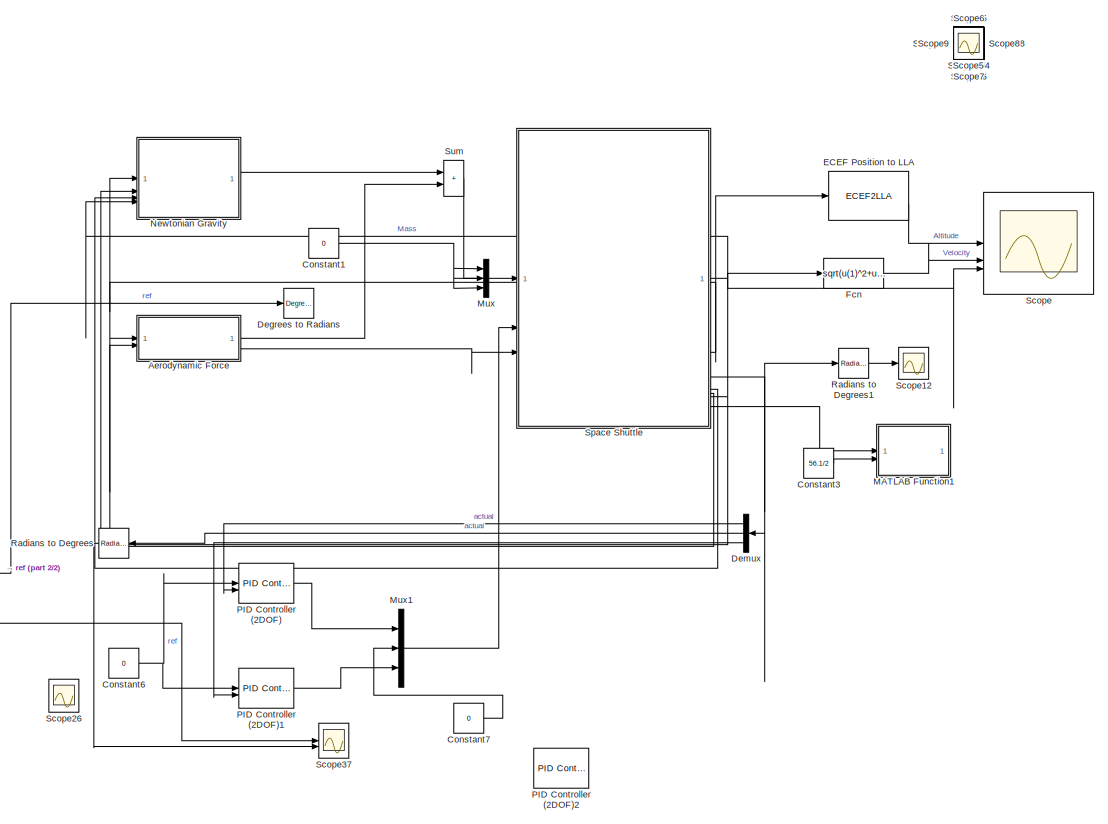
[diagram: root canvas - part 1/2, right side, full height]
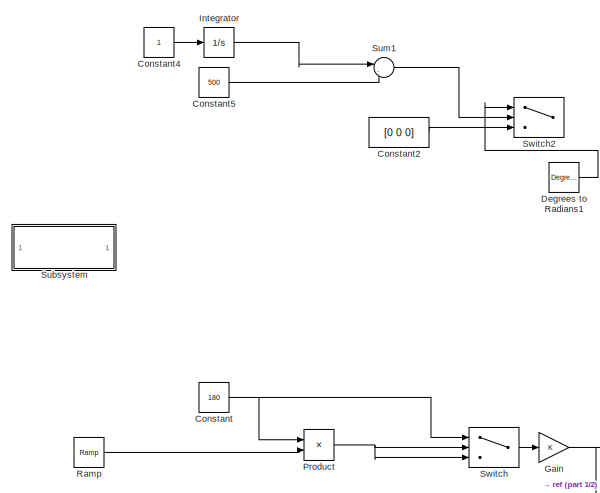
[diagram: root canvas - part 2/2, middle left region]
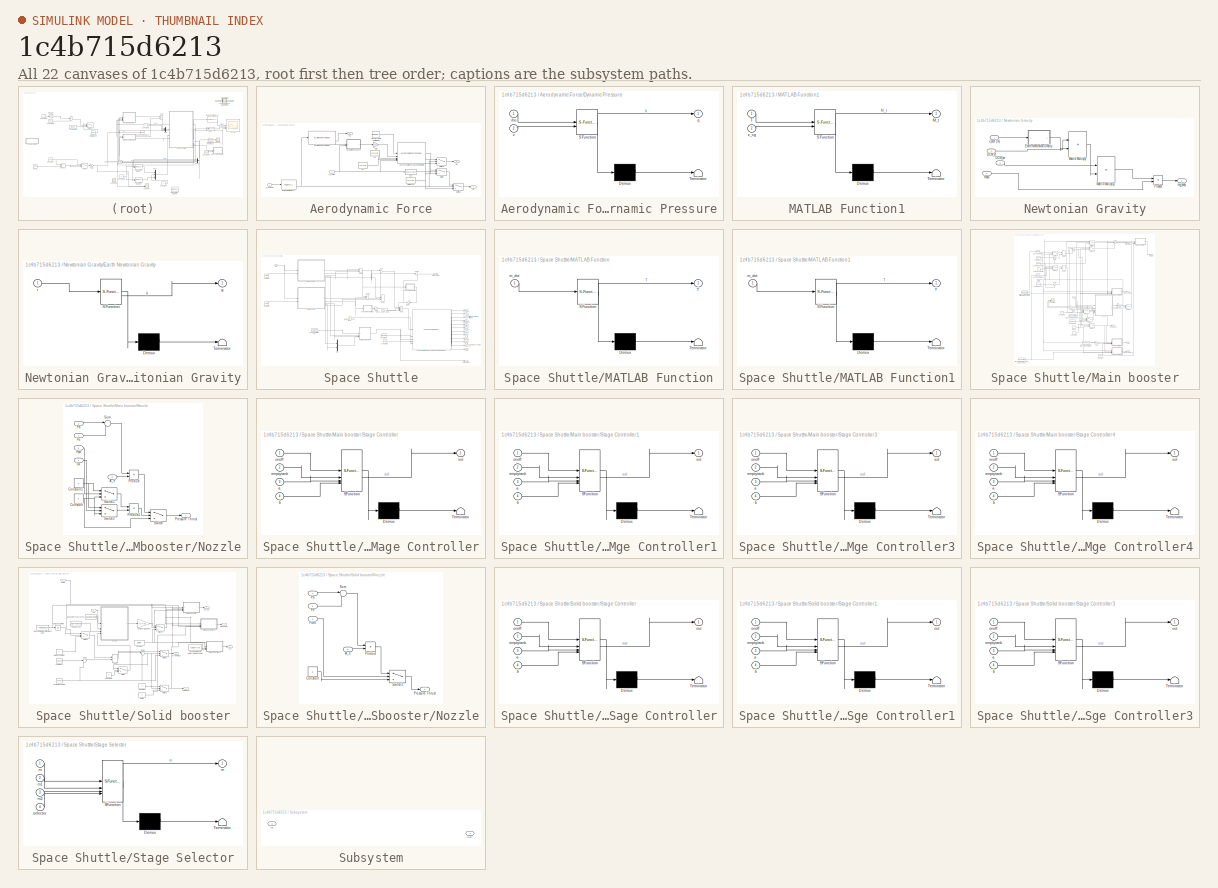
[diagram: thumbnail index - all 22 canvases of the model, root first then tree order]
MODEL slx_1c4b715d6213
KIND model
CONFIG AbsTol = auto
CONFIG EnableMultiTasking = off
CONFIG FixedStep = auto
CONFIG MaxStep = auto
CONFIG MinStep = auto
CONFIG RelTol = 1e-4
CONFIG SampleTimeConstraint = Unconstrained
CONFIG SolverName = ode45
CONFIG StartTime = 0.0
CONFIG StopTime = 1000
BLOCK [SubSystem] Aerodynamic Force
BLOCK [Constant] Aerodynamic Force/Aerodynamic Coefficients
  Value = [0.25 0 0 0 0 0]
BLOCK [Reference] Aerodynamic Force/Aerodynamic Forces and Moments   REF=aerolibadyn/Aerodynamic
Forces and Moments 
  SourceBlock = aerolibadyn/Aerodynamic\nForces and Moments
  SourceType = Aerodynamic Forces and Moments
BLOCK [Constant] Aerodynamic Force/CG
  Value = [0 0 0]
BLOCK [Constant] Aerodynamic Force/CP
  Value = [0 0 0]
BLOCK [Outport] Aerodynamic Force/D
BLOCK [SubSystem] Aerodynamic Force/Dynamic Pressure
  ErrorFcn = Stateflow.Translate.translate
  LibrarySourceBlock = simulink/User-Defined\nFunctions/MATLAB Function
  PermitHierarchicalResolution = ExplicitOnly
  SFBlockType = MATLAB Function
  TreatAsAtomicUnit = on
BLOCK [Demux] Aerodynamic Force/Dynamic Pressure/ Demux 
  Outputs = 1
BLOCK [S-Function] Aerodynamic Force/Dynamic Pressure/ SFunction 
  EnableBusSupport = on
  FunctionName = sf_sfun
  PortCounts = [2 2]
  SFcnIsStateOwnerBlock = off
  SFunctionDeploymentMode = off
  Tag = Stateflow S-Function 10
BLOCK [Terminator] Aerodynamic Force/Dynamic Pressure/ Terminator 
BLOCK [Outport] Aerodynamic Force/Dynamic Pressure/q
BLOCK [Inport] Aerodynamic Force/Dynamic Pressure/rho
BLOCK [Inport] Aerodynamic Force/Dynamic Pressure/v
  Port = 2
BLOCK [ECEF2LLA] Aerodynamic Force/ECEF Position to LLA
BLOCK [Fcn] Aerodynamic Force/Fcn
  Expr = sqrt(u(1)^2+u(2)^2+u(3)^2)
BLOCK [Gain] Aerodynamic Force/Gain
  Gain = 1e-5
BLOCK [Reference] Aerodynamic Force/ISA Atmosphere Model  REF=aerolibatmos2/ISA Atmosphere Model
  SourceBlock = aerolibatmos2/ISA Atmosphere Model
  SourceType = International Standard Atmosphere Model
BLOCK [Outport] Aerodynamic Force/Ma
  Port = 2
BLOCK [Constant] Aerodynamic Force/Null Force
  Value = [0 0 0]
BLOCK [Outport] Aerodynamic Force/Pa
  Port = 3
BLOCK [Switch] Aerodynamic Force/Switch
  Criteria = u2 > Threshold
  InputSameDT = off
  SaturateOnIntegerOverflow = off
BLOCK [Switch] Aerodynamic Force/Switch1
  Criteria = u2 > Threshold
  InputSameDT = off
  SaturateOnIntegerOverflow = off
  Threshold = 100000
BLOCK [Switch] Aerodynamic Force/Switch2
  Criteria = u2 > Threshold
  InputSameDT = off
  SaturateOnIntegerOverflow = off
  Threshold = 100000
BLOCK [Inport] Aerodynamic Force/v_b (m//s)
  Port = 2
BLOCK [Inport] Aerodynamic Force/x_ecef (m)
  NameLocation = right
BLOCK [Constant] Constant
  Value = 180
BLOCK [Constant] Constant1
  Value = 0
BLOCK [Constant] Constant2
  Value = [0 0 0]
BLOCK [Constant] Constant3
  Value = 56.1/2
BLOCK [Constant] Constant4
BLOCK [Constant] Constant5
  Value = 500
BLOCK [Constant] Constant6
  Value = 0
BLOCK [Constant] Constant7
  Value = 0
BLOCK [Reference] Degrees to Radians  REF=simulink_extras/Transformations/Degrees to
Radians
  SourceBlock = simulink_extras/Transformations/Degrees to\nRadians
  SourceType = DegreesToRadians
BLOCK [Reference] Degrees to Radians1  REF=simulink_extras/Transformations/Degrees to
Radians
  SourceBlock = simulink_extras/Transformations/Degrees to\nRadians
  SourceType = DegreesToRadians
BLOCK [Demux] Demux
  Outputs = 3
BLOCK [ECEF2LLA] ECEF Position to LLA
BLOCK [Fcn] Fcn
  Expr = sqrt(u(1)^2+u(2)^2+u(3)^2)
BLOCK [Gain] Gain
BLOCK [Integrator] Integrator
BLOCK [SubSystem] MATLAB Function1
  ErrorFcn = Stateflow.Translate.translate
  LibrarySourceBlock = simulink/User-Defined\nFunctions/MATLAB Function
  PermitHierarchicalResolution = ExplicitOnly
  SFBlockType = MATLAB Function
  TreatAsAtomicUnit = on
BLOCK [Demux] MATLAB Function1/ Demux 
  Outputs = 1
BLOCK [S-Function] MATLAB Function1/ SFunction 
  EnableBusSupport = on
  FunctionName = sf_sfun
  PortCounts = [2 2]
  SFcnIsStateOwnerBlock = off
  SFunctionDeploymentMode = off
  Tag = Stateflow S-Function 13
BLOCK [Terminator] MATLAB Function1/ Terminator 
BLOCK [Outport] MATLAB Function1/M_t
BLOCK [Inport] MATLAB Function1/T
BLOCK [Inport] MATLAB Function1/z_cg
  Port = 2
BLOCK [Mux] Mux
  DisplayOption = bar
  Inputs = 3
BLOCK [Mux] Mux1
  DisplayOption = bar
  Inputs = 3
BLOCK [SubSystem] Newtonian Gravity
BLOCK [Inport] Newtonian Gravity/DCM_be
  Port = 3
BLOCK [Inport] Newtonian Gravity/DCM_ef
  Port = 2
BLOCK [SubSystem] Newtonian Gravity/Earth Newtonian Gravity
  ErrorFcn = Stateflow.Translate.translate
  LibrarySourceBlock = simulink/User-Defined\nFunctions/MATLAB Function
  PermitHierarchicalResolution = ExplicitOnly
  SFBlockType = MATLAB Function
  TreatAsAtomicUnit = on
BLOCK [Demux] Newtonian Gravity/Earth Newtonian Gravity/ Demux 
  Outputs = 1
BLOCK [S-Function] Newtonian Gravity/Earth Newtonian Gravity/ SFunction 
  EnableBusSupport = on
  FunctionName = sf_sfun
  PortCounts = [1 2]
  SFcnIsStateOwnerBlock = off
  SFunctionDeploymentMode = off
  Tag = Stateflow S-Function 9
BLOCK [Terminator] Newtonian Gravity/Earth Newtonian Gravity/ Terminator 
BLOCK [Outport] Newtonian Gravity/Earth Newtonian Gravity/g
BLOCK [Inport] Newtonian Gravity/Earth Newtonian Gravity/r
BLOCK [Product] Newtonian Gravity/Matrix Multiply
  Multiplication = Matrix(*)
BLOCK [Product] Newtonian Gravity/Matrix Multiply1
  Multiplication = Matrix(*)
BLOCK [Product] Newtonian Gravity/Product
BLOCK [Inport] Newtonian Gravity/mass
  Port = 4
BLOCK [Outport] Newtonian Gravity/mg_body
BLOCK [Inport] Newtonian Gravity/x_ecef (m)
BLOCK [Reference] PID Controller (2DOF)  REF=slpidlib/PID Controller (2DOF)
  LibrarySourceBlock = simulink/Continuous/PID Controller (2DOF)
  SourceBlock = slpidlib/PID Controller (2DOF)
  SourceType = PID 2dof
BLOCK [Reference] PID Controller (2DOF)1  REF=slpidlib/PID Controller (2DOF)
  LibrarySourceBlock = simulink/Continuous/PID Controller (2DOF)
  SourceBlock = slpidlib/PID Controller (2DOF)
  SourceType = PID 2dof
BLOCK [Reference] PID Controller (2DOF)2  REF=slpidlib/PID Controller (2DOF)
  LibrarySourceBlock = simulink/Continuous/PID Controller (2DOF)
  SourceBlock = slpidlib/PID Controller (2DOF)
  SourceType = PID 2dof
BLOCK [Product] Product
BLOCK [Reference] Radians to Degrees  REF=simulink_extras/Transformations/Radians
to Degrees
  SourceBlock = simulink_extras/Transformations/Radians\nto Degrees
  SourceType = RadiansToDegrees
BLOCK [Reference] Radians to Degrees1  REF=simulink_extras/Transformations/Radians
to Degrees
  SourceBlock = simulink_extras/Transformations/Radians\nto Degrees
  SourceType = RadiansToDegrees
BLOCK [Reference] Ramp  REF=simulink/Sources/Ramp
  SourceBlock = simulink/Sources/Ramp
  SourceType = Ramp
BLOCK [Scope] Scope
  Floating = off
  NumInputPorts = 3
  ScopeSpecificationString = Simulink.scopes.TimeScopeBlockCfg('CurrentConfiguration', extmgr.ConfigurationSet(extmgr.Configuration('Core','General UI',true),extmgr.Configuration('Core','Source UI',true),extmgr.Configuration('Sources','WiredSimulink',true),extmgr.Configuration('Visuals','Time Domain',true,'SerializedDisplays',{struct('MinYLimReal','109.99686','MaxYLimReal','110.00035','YLabelReal','','MinYLimMag','109.99686',...<+2678ch>
BLOCK [Scope] Scope1
  Floating = off
  IOType = viewer
  NumInputPorts = 1
  ScopeSpecificationString = Simulink.scopes.TimeScopeBlockCfg('CurrentConfiguration', extmgr.ConfigurationSet(extmgr.Configuration('Core','General UI',true),extmgr.Configuration('Core','Source UI',true),extmgr.Configuration('Sources','WiredSimulink',true,'DataLoggingVariableName','ScopeData1'),extmgr.Configuration('Visuals','Time Domain',true,'SerializedDisplays',{struct('MinYLimReal','-1.00000','MaxYLimReal','1.00000','YLab...<+1448ch>
BLOCK [Scope] Scope10
  Floating = off
  IOType = viewer
  NumInputPorts = 1
  ScopeSpecificationString = Simulink.scopes.TimeScopeBlockCfg('CurrentConfiguration', extmgr.ConfigurationSet(extmgr.Configuration('Core','General UI',true),extmgr.Configuration('Core','Source UI',true),extmgr.Configuration('Sources','WiredSimulink',true,'DataLoggingVariableName','ScopeData10'),extmgr.Configuration('Visuals','Time Domain',true,'SerializedDisplays',{struct('MinYLimReal','106255.30828','MaxYLimReal','106261.63...<+1452ch>
BLOCK [Scope] Scope11
  Floating = off
  IOType = viewer
  NumInputPorts = 1
  ScopeSpecificationString = Simulink.scopes.TimeScopeBlockCfg('CurrentConfiguration', extmgr.ConfigurationSet(extmgr.Configuration('Core','General UI',true),extmgr.Configuration('Core','Source UI',true),extmgr.Configuration('Sources','WiredSimulink',true,'DataLoggingVariableName','ScopeData1'),extmgr.Configuration('Visuals','Time Domain',true,'SerializedDisplays',{struct('MinYLimReal','-0.03551','MaxYLimReal','0.79745','YLab...<+1411ch>
BLOCK [Scope] Scope12
  Floating = off
  NumInputPorts = 1
  ScopeSpecificationString = Simulink.scopes.TimeScopeBlockCfg('CurrentConfiguration', extmgr.ConfigurationSet(extmgr.Configuration('Core','General UI',true),extmgr.Configuration('Core','Source UI',true),extmgr.Configuration('Sources','WiredSimulink',true,'DataLoggingVariableName','ScopeData14'),extmgr.Configuration('Visuals','Time Domain',true,'SerializedDisplays',{struct('MinYLimReal','-170.50068','MaxYLimReal','129.49932',...<+1515ch>
BLOCK [Scope] Scope13
  Floating = off
  IOType = viewer
  NumInputPorts = 1
  ScopeSpecificationString = Simulink.scopes.TimeScopeBlockCfg('CurrentConfiguration', extmgr.ConfigurationSet(extmgr.Configuration('Core','General UI',true),extmgr.Configuration('Core','Source UI',true),extmgr.Configuration('Sources','WiredSimulink',true,'DataLoggingVariableName','ScopeData15'),extmgr.Configuration('Visuals','Time Domain',true,'SerializedDisplays',{struct('MinYLimReal','-97.63862','MaxYLimReal','187.12699','...<+1370ch>
BLOCK [Scope] Scope14
  Floating = off
  IOType = viewer
  NumInputPorts = 1
  ScopeSpecificationString = Simulink.scopes.TimeScopeBlockCfg('CurrentConfiguration', extmgr.ConfigurationSet(extmgr.Configuration('Core','General UI',true),extmgr.Configuration('Core','Source UI',true),extmgr.Configuration('Sources','WiredSimulink',true,'DataLoggingVariableName','ScopeData16'),extmgr.Configuration('Visuals','Time Domain',true,'SerializedDisplays',{struct('MinYLimReal','-1789056.42519','MaxYLimReal','1601484...<+1482ch>
BLOCK [Scope] Scope15
  Floating = off
  IOType = viewer
  NumInputPorts = 1
  ScopeSpecificationString = Simulink.scopes.TimeScopeBlockCfg('CurrentConfiguration', extmgr.ConfigurationSet(extmgr.Configuration('Core','General UI',true),extmgr.Configuration('Core','Source UI',true),extmgr.Configuration('Sources','WiredSimulink',true,'DataLoggingVariableName','ScopeData17'),extmgr.Configuration('Visuals','Time Domain',true,'SerializedDisplays',{struct('MinYLimReal','-19.8313','MaxYLimReal','178.48173','Y...<+1420ch>
BLOCK [Scope] Scope16
  Floating = off
  IOType = viewer
  NumInputPorts = 1
  ScopeSpecificationString = Simulink.scopes.TimeScopeBlockCfg('CurrentConfiguration', extmgr.ConfigurationSet(extmgr.Configuration('Core','General UI',true),extmgr.Configuration('Core','Source UI',true),extmgr.Configuration('Sources','WiredSimulink',true,'DataLoggingVariableName','ScopeData18'),extmgr.Configuration('Visuals','Time Domain',true,'SerializedDisplays',{struct('MinYLimReal','-0.02925','MaxYLimReal','0.26259','YLa...<+1428ch>
BLOCK [Scope] Scope17
  Floating = off
  IOType = viewer
  NumInputPorts = 1
  ScopeSpecificationString = Simulink.scopes.TimeScopeBlockCfg('CurrentConfiguration', extmgr.ConfigurationSet(extmgr.Configuration('Core','General UI',true),extmgr.Configuration('Core','Source UI',true),extmgr.Configuration('Sources','WiredSimulink',true,'DataLoggingVariableName','ScopeData19'),extmgr.Configuration('Visuals','Time Domain',true,'SerializedDisplays',{struct('MinYLimReal','-287.5','MaxYLimReal','587.5','YLabelR...<+1379ch>
BLOCK [Scope] Scope18
  Floating = off
  IOType = viewer
  NumInputPorts = 1
  ScopeSpecificationString = Simulink.scopes.TimeScopeBlockCfg('CurrentConfiguration', extmgr.ConfigurationSet(extmgr.Configuration('Core','General UI',true),extmgr.Configuration('Core','Source UI',true),extmgr.Configuration('Sources','WiredSimulink',true,'DataLoggingVariableName','ScopeData1'),extmgr.Configuration('Visuals','Time Domain',true,'SerializedDisplays',{struct('MinYLimReal','-0.07775','MaxYLimReal','9.91855','YLab...<+1388ch>
BLOCK [Scope] Scope19
  Floating = off
  IOType = viewer
  NumInputPorts = 1
  ScopeSpecificationString = Simulink.scopes.TimeScopeBlockCfg('CurrentConfiguration', extmgr.ConfigurationSet(extmgr.Configuration('Core','General UI',true),extmgr.Configuration('Core','Source UI',true),extmgr.Configuration('Sources','WiredSimulink',true,'DataLoggingVariableName','ScopeData3'),extmgr.Configuration('Visuals','Time Domain',true,'SerializedDisplays',{struct('MinYLimReal','-1.00000','MaxYLimReal','1.00000','YLab...<+1443ch>
BLOCK [Scope] Scope2
  Floating = off
  IOType = viewer
  NumInputPorts = 1
  ScopeSpecificationString = Simulink.scopes.TimeScopeBlockCfg('CurrentConfiguration', extmgr.ConfigurationSet(extmgr.Configuration('Core','General UI',true),extmgr.Configuration('Core','Source UI',true),extmgr.Configuration('Sources','WiredSimulink',true,'DataLoggingVariableName','ScopeData2'),extmgr.Configuration('Visuals','Time Domain',true,'SerializedDisplays',{struct('MinYLimReal','0.9','MaxYLimReal','1.1','YLabelReal','...<+1361ch>
BLOCK [Scope] Scope20
  Floating = off
  IOType = viewer
  NumInputPorts = 1
  ScopeSpecificationString = Simulink.scopes.TimeScopeBlockCfg('CurrentConfiguration', extmgr.ConfigurationSet(extmgr.Configuration('Core','General UI',true),extmgr.Configuration('Core','Source UI',true),extmgr.Configuration('Sources','WiredSimulink',true,'DataLoggingVariableName','ScopeData4'),extmgr.Configuration('Visuals','Time Domain',true,'SerializedDisplays',{struct('MinYLimReal','-1.00000','MaxYLimReal','1.00000','YLab...<+1409ch>
BLOCK [Scope] Scope21
  Floating = off
  IOType = viewer
  NumInputPorts = 1
  ScopeSpecificationString = Simulink.scopes.TimeScopeBlockCfg('CurrentConfiguration', extmgr.ConfigurationSet(extmgr.Configuration('Core','General UI',true),extmgr.Configuration('Core','Source UI',true),extmgr.Configuration('Sources','WiredSimulink',true,'DataLoggingVariableName','ScopeData2'),extmgr.Configuration('Visuals','Time Domain',true,'SerializedDisplays',{struct('MinYLimReal','-1.00000','MaxYLimReal','1.00000','YLab...<+1411ch>
BLOCK [Scope] Scope22
  Floating = off
  IOType = viewer
  NumInputPorts = 1
  ScopeSpecificationString = Simulink.scopes.TimeScopeBlockCfg('CurrentConfiguration', extmgr.ConfigurationSet(extmgr.Configuration('Core','General UI',true),extmgr.Configuration('Core','Source UI',true),extmgr.Configuration('Sources','WiredSimulink',true,'DataLoggingVariableName','ScopeData6'),extmgr.Configuration('Visuals','Time Domain',true,'SerializedDisplays',{struct('MinYLimReal','-0.04538','MaxYLimReal','0.40844','YLab...<+1428ch>
BLOCK [Scope] Scope23
  Floating = off
  IOType = viewer
  NumInputPorts = 1
  ScopeSpecificationString = Simulink.scopes.TimeScopeBlockCfg('CurrentConfiguration', extmgr.ConfigurationSet(extmgr.Configuration('Core','General UI',true),extmgr.Configuration('Core','Source UI',true),extmgr.Configuration('Sources','WiredSimulink',true,'DataLoggingVariableName','ScopeData7'),extmgr.Configuration('Visuals','Time Domain',true,'SerializedDisplays',{struct('MinYLimReal','-1.97006','MaxYLimReal','2.02241','YLab...<+1777ch>
BLOCK [Scope] Scope24
  Floating = off
  IOType = viewer
  NumInputPorts = 1
  ScopeSpecificationString = Simulink.scopes.TimeScopeBlockCfg('CurrentConfiguration', extmgr.ConfigurationSet(extmgr.Configuration('Core','General UI',true),extmgr.Configuration('Core','Source UI',true),extmgr.Configuration('Sources','WiredSimulink',true,'DataLoggingVariableName','ScopeData8'),extmgr.Configuration('Visuals','Time Domain',true,'SerializedDisplays',{struct('MinYLimReal','-0.04687','MaxYLimReal','0.42188','YLab...<+1388ch>
BLOCK [Scope] Scope25
  Floating = off
  IOType = viewer
  NumInputPorts = 1
  ScopeSpecificationString = Simulink.scopes.TimeScopeBlockCfg('CurrentConfiguration', extmgr.ConfigurationSet(extmgr.Configuration('Core','General UI',true),extmgr.Configuration('Core','Source UI',true),extmgr.Configuration('Sources','WiredSimulink',true,'DataLoggingVariableName','ScopeData3'),extmgr.Configuration('Visuals','Time Domain',true,'SerializedDisplays',{struct('MinYLimReal','-112.5','MaxYLimReal','112.5','YLabelRe...<+1401ch>
BLOCK [Scope] Scope26
  Floating = off
  NumInputPorts = 2
  ScopeSpecificationString = Simulink.scopes.TimeScopeBlockCfg('CurrentConfiguration', extmgr.ConfigurationSet(extmgr.Configuration('Core','General UI',true),extmgr.Configuration('Core','Source UI',true),extmgr.Configuration('Sources','WiredSimulink',true,'DataLoggingVariableName','ScopeData2'),extmgr.Configuration('Visuals','Time Domain',true,'SerializedDisplays',{struct('MinYLimReal','-1.00000','MaxYLimReal','1.00000','YLab...<+1501ch>
BLOCK [Scope] Scope27
  Floating = off
  IOType = viewer
  NumInputPorts = 1
  ScopeSpecificationString = Simulink.scopes.TimeScopeBlockCfg('CurrentConfiguration', extmgr.ConfigurationSet(extmgr.Configuration('Core','General UI',true),extmgr.Configuration('Core','Source UI',true),extmgr.Configuration('Sources','WiredSimulink',true,'DataLoggingVariableName','ScopeData5'),extmgr.Configuration('Visuals','Time Domain',true,'SerializedDisplays',{struct('MinYLimReal','-0.125','MaxYLimReal','1.125','YLabelRe...<+1373ch>
BLOCK [Scope] Scope28
  Floating = off
  IOType = viewer
  NumInputPorts = 1
  ScopeSpecificationString = Simulink.scopes.TimeScopeBlockCfg('CurrentConfiguration', extmgr.ConfigurationSet(extmgr.Configuration('Core','General UI',true),extmgr.Configuration('Core','Source UI',true),extmgr.Configuration('Sources','WiredSimulink',true,'DataLoggingVariableName','ScopeData3'),extmgr.Configuration('Visuals','Time Domain',true,'SerializedDisplays',{struct('MinYLimReal','-4237479584.60828','MaxYLimReal','47090...<+1456ch>
BLOCK [Scope] Scope29
  Floating = off
  IOType = viewer
  NumInputPorts = 1
  ScopeSpecificationString = Simulink.scopes.TimeScopeBlockCfg('CurrentConfiguration', extmgr.ConfigurationSet(extmgr.Configuration('Core','General UI',true),extmgr.Configuration('Core','Source UI',true),extmgr.Configuration('Sources','WiredSimulink',true,'DataLoggingVariableName','ScopeData1'),extmgr.Configuration('Visuals','Time Domain',true,'SerializedDisplays',{struct('MinYLimReal','-1.96349','MaxYLimReal','1.96349','YLab...<+1419ch>
BLOCK [Scope] Scope3
  Floating = off
  IOType = viewer
  NumInputPorts = 1
  ScopeSpecificationString = Simulink.scopes.TimeScopeBlockCfg('CurrentConfiguration', extmgr.ConfigurationSet(extmgr.Configuration('Core','General UI',true),extmgr.Configuration('Core','Source UI',true),extmgr.Configuration('Sources','WiredSimulink',true,'DataLoggingVariableName','ScopeData3'),extmgr.Configuration('Visuals','Time Domain',true,'SerializedDisplays',{struct('MinYLimReal','0.9','MaxYLimReal','1.1','YLabelReal','...<+1361ch>
BLOCK [Scope] Scope30
  Floating = off
  IOType = viewer
  NumInputPorts = 1
  ScopeSpecificationString = Simulink.scopes.TimeScopeBlockCfg('CurrentConfiguration', extmgr.ConfigurationSet(extmgr.Configuration('Core','General UI',true),extmgr.Configuration('Core','Source UI',true),extmgr.Configuration('Sources','WiredSimulink',true,'DataLoggingVariableName','ScopeData4'),extmgr.Configuration('Visuals','Time Domain',true,'SerializedDisplays',{struct('MinYLimReal','-1.00000','MaxYLimReal','1.00000','YLab...<+1421ch>
BLOCK [Scope] Scope31
  Floating = off
  IOType = viewer
  NumInputPorts = 1
  ScopeSpecificationString = Simulink.scopes.TimeScopeBlockCfg('CurrentConfiguration', extmgr.ConfigurationSet(extmgr.Configuration('Core','General UI',true),extmgr.Configuration('Core','Source UI',true),extmgr.Configuration('Sources','WiredSimulink',true,'DataLoggingVariableName','ScopeData1'),extmgr.Configuration('Visuals','Time Domain',true,'SerializedDisplays',{struct('MinYLimReal','-1789056.42519','MaxYLimReal','16014841...<+1454ch>
BLOCK [Scope] Scope32
  Floating = off
  IOType = viewer
  NumInputPorts = 1
  ScopeSpecificationString = Simulink.scopes.TimeScopeBlockCfg('CurrentConfiguration', extmgr.ConfigurationSet(extmgr.Configuration('Core','General UI',true),extmgr.Configuration('Core','Source UI',true),extmgr.Configuration('Sources','WiredSimulink',true,'DataLoggingVariableName','ScopeData2'),extmgr.Configuration('Visuals','Time Domain',true,'SerializedDisplays',{struct('MinYLimReal','-1789056.42519','MaxYLimReal','16014841...<+1438ch>
BLOCK [Scope] Scope33
  Floating = off
  IOType = viewer
  NumInputPorts = 1
  ScopeSpecificationString = Simulink.scopes.TimeScopeBlockCfg('CurrentConfiguration', extmgr.ConfigurationSet(extmgr.Configuration('Core','General UI',true),extmgr.Configuration('Core','Source UI',true),extmgr.Configuration('Sources','WiredSimulink',true,'DataLoggingVariableName','ScopeData3'),extmgr.Configuration('Visuals','Time Domain',true,'SerializedDisplays',{struct('MinYLimReal','-6169898.10499','MaxYLimReal','4955458....<+1476ch>
BLOCK [Scope] Scope34
  Floating = off
  IOType = viewer
  NumInputPorts = 1
  ScopeSpecificationString = Simulink.scopes.TimeScopeBlockCfg('CurrentConfiguration', extmgr.ConfigurationSet(extmgr.Configuration('Core','General UI',true),extmgr.Configuration('Core','Source UI',true),extmgr.Configuration('Sources','WiredSimulink',true,'DataLoggingVariableName','ScopeData4'),extmgr.Configuration('Visuals','Time Domain',true,'SerializedDisplays',{struct('MinYLimReal','-315691.07817','MaxYLimReal','-315690.9...<+1434ch>
BLOCK [Scope] Scope35
  Floating = off
  IOType = viewer
  NumInputPorts = 1
  ScopeSpecificationString = Simulink.scopes.TimeScopeBlockCfg('CurrentConfiguration', extmgr.ConfigurationSet(extmgr.Configuration('Core','General UI',true),extmgr.Configuration('Core','Source UI',true),extmgr.Configuration('Sources','WiredSimulink',true,'DataLoggingVariableName','ScopeData5'),extmgr.Configuration('Visuals','Time Domain',true,'SerializedDisplays',{struct('MinYLimReal','-1.00000','MaxYLimReal','1.00000','YLab...<+1431ch>
BLOCK [Scope] Scope36
  Floating = off
  IOType = viewer
  NumInputPorts = 1
  ScopeSpecificationString = Simulink.scopes.TimeScopeBlockCfg('CurrentConfiguration', extmgr.ConfigurationSet(extmgr.Configuration('Core','General UI',true),extmgr.Configuration('Core','Source UI',true),extmgr.Configuration('Sources','WiredSimulink',true,'DataLoggingVariableName','ScopeData6'),extmgr.Configuration('Visuals','Time Domain',true,'SerializedDisplays',{struct('MinYLimReal','0.5708','MaxYLimReal','2.5708','YLabelR...<+1395ch>
BLOCK [Scope] Scope37
  Floating = off
  NumInputPorts = 2
  ScopeSpecificationString = Simulink.scopes.TimeScopeBlockCfg('CurrentConfiguration', extmgr.ConfigurationSet(extmgr.Configuration('Core','General UI',true),extmgr.Configuration('Core','Source UI',true),extmgr.Configuration('Sources','WiredSimulink',true,'DataLoggingVariableName','ScopeData7'),extmgr.Configuration('Visuals','Time Domain',true,'SerializedDisplays',{struct('MinYLimReal','-112.5','MaxYLimReal','112.5','YLabelRe...<+1426ch>
BLOCK [Scope] Scope38
  Floating = off
  IOType = viewer
  NumInputPorts = 1
  ScopeSpecificationString = Simulink.scopes.TimeScopeBlockCfg('CurrentConfiguration', extmgr.ConfigurationSet(extmgr.Configuration('Core','General UI',true),extmgr.Configuration('Core','Source UI',true),extmgr.Configuration('Sources','WiredSimulink',true,'DataLoggingVariableName','ScopeData8'),extmgr.Configuration('Visuals','Time Domain',true,'SerializedDisplays',{struct('MinYLimReal','-1.96349','MaxYLimReal','1.96349','YLab...<+1409ch>
BLOCK [Scope] Scope4
  Floating = off
  IOType = viewer
  NumInputPorts = 1
  ScopeSpecificationString = Simulink.scopes.TimeScopeBlockCfg('CurrentConfiguration', extmgr.ConfigurationSet(extmgr.Configuration('Core','General UI',true),extmgr.Configuration('Core','Source UI',true),extmgr.Configuration('Sources','WiredSimulink',true,'DataLoggingVariableName','ScopeData4'),extmgr.Configuration('Visuals','Time Domain',true,'SerializedDisplays',{struct('MinYLimReal','-105.6544','MaxYLimReal','11.73938','YL...<+1403ch>
BLOCK [Scope] Scope5
  Floating = off
  IOType = viewer
  NumInputPorts = 1
  ScopeSpecificationString = Simulink.scopes.TimeScopeBlockCfg('CurrentConfiguration', extmgr.ConfigurationSet(extmgr.Configuration('Core','General UI',true),extmgr.Configuration('Core','Source UI',true),extmgr.Configuration('Sources','WiredSimulink',true,'DataLoggingVariableName','ScopeData5'),extmgr.Configuration('Visuals','Time Domain',true,'SerializedDisplays',{struct('MinYLimReal','498894.3456','MaxYLimReal','499011.7393...<+1449ch>
BLOCK [Scope] Scope6
  Floating = off
  IOType = viewer
  NumInputPorts = 1
  ScopeSpecificationString = Simulink.scopes.TimeScopeBlockCfg('CurrentConfiguration', extmgr.ConfigurationSet(extmgr.Configuration('Core','General UI',true),extmgr.Configuration('Core','Source UI',true),extmgr.Configuration('Sources','WiredSimulink',true,'DataLoggingVariableName','ScopeData6'),extmgr.Configuration('Visuals','Time Domain',true,'SerializedDisplays',{struct('MinYLimReal','498894.3456','MaxYLimReal','499011.7393...<+1422ch>
BLOCK [Scope] Scope7
  Floating = off
  IOType = viewer
  NumInputPorts = 1
  ScopeSpecificationString = Simulink.scopes.TimeScopeBlockCfg('CurrentConfiguration', extmgr.ConfigurationSet(extmgr.Configuration('Core','General UI',true),extmgr.Configuration('Core','Source UI',true),extmgr.Configuration('Sources','WiredSimulink',true,'DataLoggingVariableName','ScopeData7'),extmgr.Configuration('Visuals','Time Domain',true,'SerializedDisplays',{struct('MinYLimReal','106255.30828','MaxYLimReal','106261.632...<+1453ch>
BLOCK [Scope] Scope8
  Floating = off
  IOType = viewer
  NumInputPorts = 1
  ScopeSpecificationString = Simulink.scopes.TimeScopeBlockCfg('CurrentConfiguration', extmgr.ConfigurationSet(extmgr.Configuration('Core','General UI',true),extmgr.Configuration('Core','Source UI',true),extmgr.Configuration('Sources','WiredSimulink',true,'DataLoggingVariableName','ScopeData8'),extmgr.Configuration('Visuals','Time Domain',true,'SerializedDisplays',{struct('MinYLimReal','106255.30828','MaxYLimReal','106261.632...<+1422ch>
BLOCK [Scope] Scope9
  Floating = off
  IOType = viewer
  NumInputPorts = 1
  ScopeSpecificationString = Simulink.scopes.TimeScopeBlockCfg('CurrentConfiguration', extmgr.ConfigurationSet(extmgr.Configuration('Core','General UI',true),extmgr.Configuration('Core','Source UI',true),extmgr.Configuration('Sources','WiredSimulink',true,'DataLoggingVariableName','ScopeData9'),extmgr.Configuration('Visuals','Time Domain',true,'SerializedDisplays',{struct('MinYLimReal','0.9','MaxYLimReal','1.1','YLabelReal','...<+1332ch>
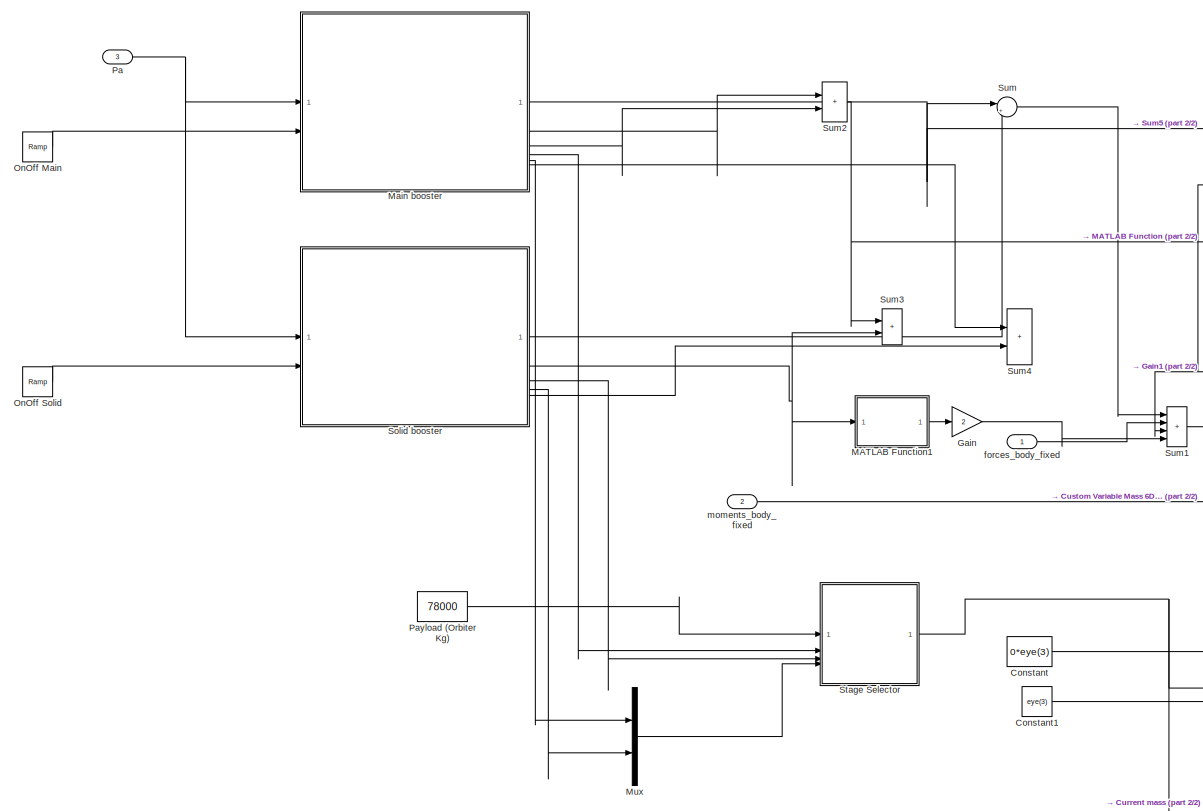
[diagram: Space Shuttle - part 1/2, left side, full height]
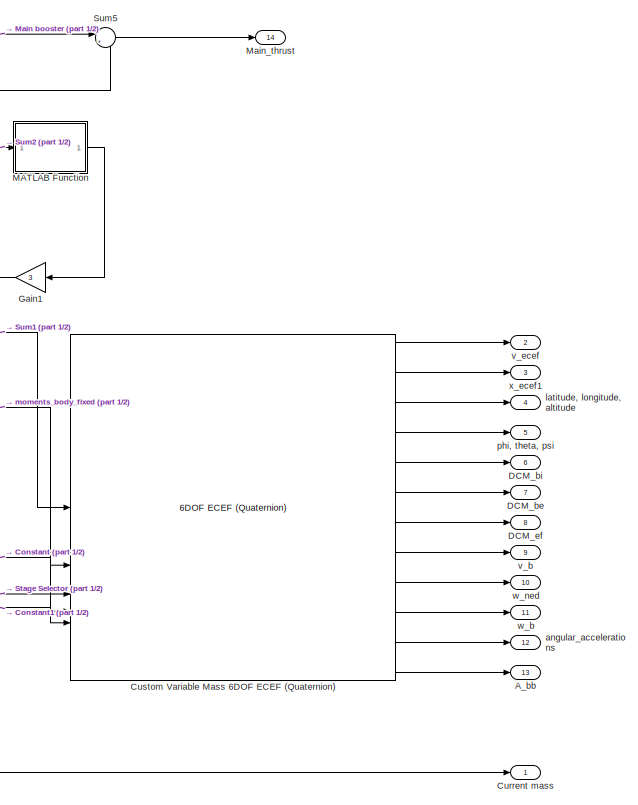
[diagram: Space Shuttle - part 2/2, right side, full height]
BLOCK [SubSystem] Space Shuttle
BLOCK [Outport] Space Shuttle/A_bb
  Port = 13
BLOCK [Constant] Space Shuttle/Constant
  Value = 0*eye(3)
BLOCK [Constant] Space Shuttle/Constant1
  Value = eye(3)
BLOCK [Outport] Space Shuttle/Current mass
BLOCK [Reference] Space Shuttle/Custom Variable Mass 6DOF ECEF (Quaternion)  REF=aerolib6dof2/6DOF ECEF (Quaternion)
  LibrarySourceBlock = aerolib6dof2/Custom Variable Mass 6DOF\nECEF (Quaternion)
  SourceBlock = aerolib6dof2/6DOF ECEF (Quaternion)
  SourceType = 6DOF EoM (ECEF)
BLOCK [Outport] Space Shuttle/DCM_be
  Port = 7
BLOCK [Outport] Space Shuttle/DCM_bi
  Port = 6
BLOCK [Outport] Space Shuttle/DCM_ef
  Port = 8
BLOCK [Gain] Space Shuttle/Gain
  Gain = 2
BLOCK [Gain] Space Shuttle/Gain1
  Gain = 3
BLOCK [SubSystem] Space Shuttle/MATLAB Function
  ErrorFcn = Stateflow.Translate.translate
  LibrarySourceBlock = simulink/User-Defined\nFunctions/MATLAB Function
  PermitHierarchicalResolution = ExplicitOnly
  SFBlockType = MATLAB Function
  TreatAsAtomicUnit = on
BLOCK [Demux] Space Shuttle/MATLAB Function/ Demux 
  Outputs = 1
BLOCK [S-Function] Space Shuttle/MATLAB Function/ SFunction 
  EnableBusSupport = on
  FunctionName = sf_sfun
  PortCounts = [1 2]
  SFcnIsStateOwnerBlock = off
  SFunctionDeploymentMode = off
  Tag = Stateflow S-Function 3
BLOCK [Terminator] Space Shuttle/MATLAB Function/ Terminator 
BLOCK [Outport] Space Shuttle/MATLAB Function/T
BLOCK [Inport] Space Shuttle/MATLAB Function/m_dot
BLOCK [SubSystem] Space Shuttle/MATLAB Function1
  ErrorFcn = Stateflow.Translate.translate
  LibrarySourceBlock = simulink/User-Defined\nFunctions/MATLAB Function
  PermitHierarchicalResolution = ExplicitOnly
  SFBlockType = MATLAB Function
  TreatAsAtomicUnit = on
BLOCK [Demux] Space Shuttle/MATLAB Function1/ Demux 
  Outputs = 1
BLOCK [S-Function] Space Shuttle/MATLAB Function1/ SFunction 
  EnableBusSupport = on
  FunctionName = sf_sfun
  PortCounts = [1 2]
  SFcnIsStateOwnerBlock = off
  SFunctionDeploymentMode = off
  Tag = Stateflow S-Function 12
BLOCK [Terminator] Space Shuttle/MATLAB Function1/ Terminator 
BLOCK [Outport] Space Shuttle/MATLAB Function1/T
BLOCK [Inport] Space Shuttle/MATLAB Function1/m_dot
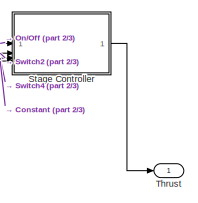
[diagram: Space Shuttle/Main booster - part 1/3, top right region]
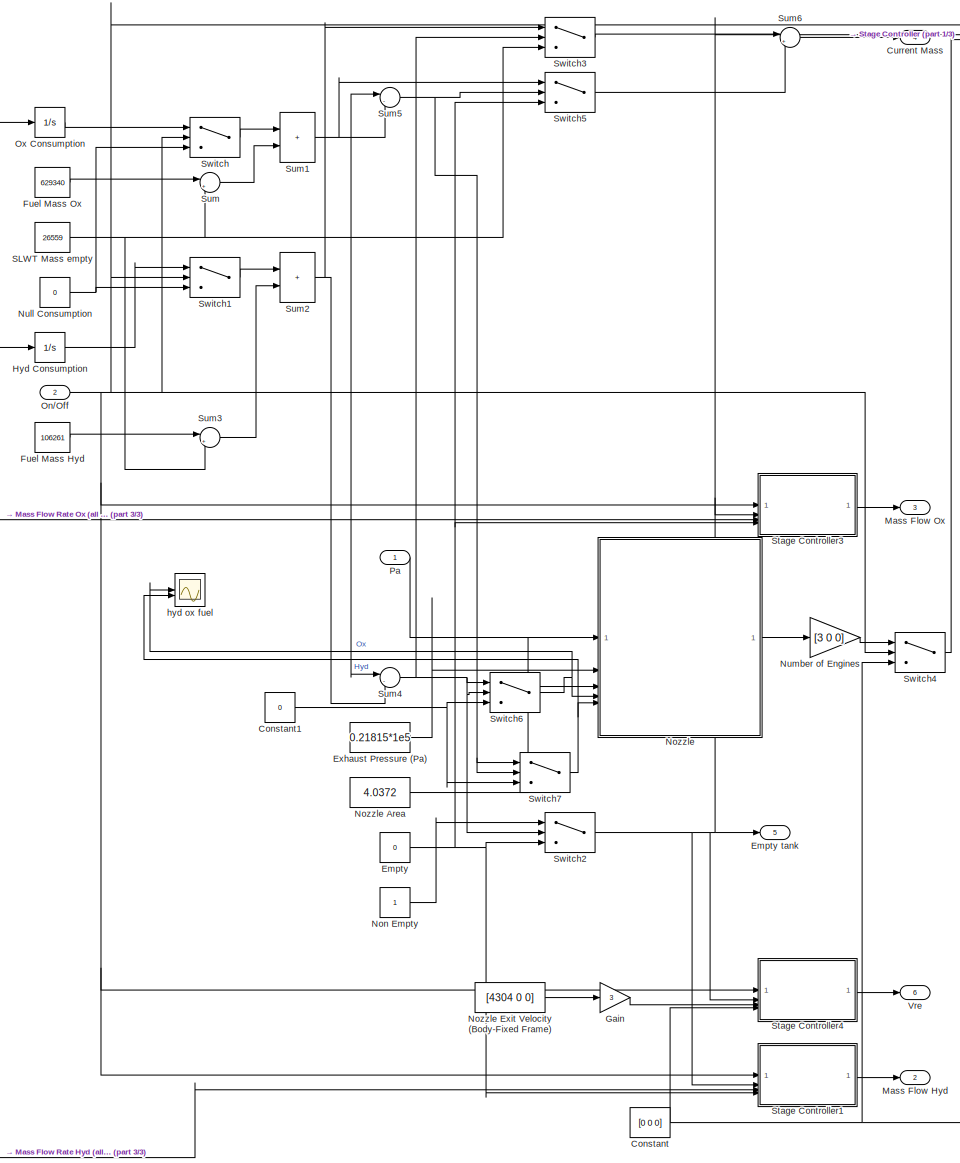
[diagram: Space Shuttle/Main booster - part 2/3, center side, full height]
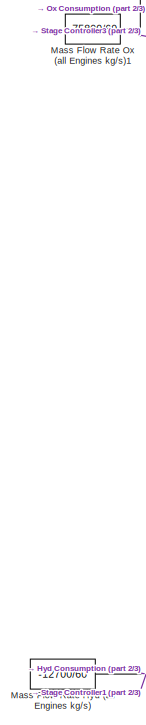
[diagram: Space Shuttle/Main booster - part 3/3, bottom left region]
BLOCK [SubSystem] Space Shuttle/Main booster
BLOCK [Constant] Space Shuttle/Main booster/Constant
  Value = [0 0  0]
BLOCK [Constant] Space Shuttle/Main booster/Constant1
  Value = 0
BLOCK [Outport] Space Shuttle/Main booster/Current Mass
  Port = 4
BLOCK [Constant] Space Shuttle/Main booster/Empty
  Value = 0
BLOCK [Outport] Space Shuttle/Main booster/Empty tank
  Port = 5
BLOCK [Constant] Space Shuttle/Main booster/Exhaust Pressure (Pa)
  Value = 0.21815*1e5
BLOCK [Constant] Space Shuttle/Main booster/Fuel Mass Hyd
  Value = 106261
BLOCK [Constant] Space Shuttle/Main booster/Fuel Mass Ox
  Value = 629340
BLOCK [Gain] Space Shuttle/Main booster/Gain
  Gain = 3
BLOCK [Integrator] Space Shuttle/Main booster/Hyd Consumption
BLOCK [Outport] Space Shuttle/Main booster/Mass Flow Hyd
  Port = 2
BLOCK [Outport] Space Shuttle/Main booster/Mass Flow Ox
  Port = 3
BLOCK [Constant] Space Shuttle/Main booster/Mass Flow Rate Hyd (all Engines kg//s)
  Value = -12700/60
BLOCK [Constant] Space Shuttle/Main booster/Mass Flow Rate Ox (all Engines kg//s)1
  Value = -75800/60
BLOCK [Constant] Space Shuttle/Main booster/Non Empty
BLOCK [SubSystem] Space Shuttle/Main booster/Nozzle
BLOCK [Constant] Space Shuttle/Main booster/Nozzle Area
  Value = 4.0372
BLOCK [Constant] Space Shuttle/Main booster/Nozzle Exit Velocity (Body-Fixed Frame)
  Value = [4304 0 0]
BLOCK [Inport] Space Shuttle/Main booster/Nozzle/A_e
  Port = 3
BLOCK [Constant] Space Shuttle/Main booster/Nozzle/Constant
  Value = 0
BLOCK [Constant] Space Shuttle/Main booster/Nozzle/Constant1
BLOCK [Inport] Space Shuttle/Main booster/Nozzle/Hyd
  Port = 5
BLOCK [Inport] Space Shuttle/Main booster/Nozzle/Ox
  Port = 4
BLOCK [Inport] Space Shuttle/Main booster/Nozzle/Pa
BLOCK [Inport] Space Shuttle/Main booster/Nozzle/Pe
  Port = 2
BLOCK [Outport] Space Shuttle/Main booster/Nozzle/Pressure Thrust
BLOCK [Product] Space Shuttle/Main booster/Nozzle/Product
BLOCK [Product] Space Shuttle/Main booster/Nozzle/Product1
BLOCK [Sum] Space Shuttle/Main booster/Nozzle/Sum
  Inputs = |-+
BLOCK [Switch] Space Shuttle/Main booster/Nozzle/Switch
  Criteria = u2 > Threshold
  InputSameDT = off
  SaturateOnIntegerOverflow = off
BLOCK [Switch] Space Shuttle/Main booster/Nozzle/Switch1
  Criteria = u2 > Threshold
  InputSameDT = off
  SaturateOnIntegerOverflow = off
BLOCK [Switch] Space Shuttle/Main booster/Nozzle/Switch2
  Criteria = u2 > Threshold
  InputSameDT = off
  SaturateOnIntegerOverflow = off
BLOCK [Constant] Space Shuttle/Main booster/Null Consumption
  Value = 0
BLOCK [Gain] Space Shuttle/Main booster/Number of Engines
  Gain = [3 0 0]
BLOCK [Inport] Space Shuttle/Main booster/On//Off
  Port = 2
BLOCK [Integrator] Space Shuttle/Main booster/Ox Consumption
BLOCK [Inport] Space Shuttle/Main booster/Pa
BLOCK [Constant] Space Shuttle/Main booster/SLWT Mass empty
  Value = 26559
BLOCK [SubSystem] Space Shuttle/Main booster/Stage Controller
  ErrorFcn = Stateflow.Translate.translate
  LibrarySourceBlock = simulink/User-Defined\nFunctions/MATLAB Function
  PermitHierarchicalResolution = ExplicitOnly
  SFBlockType = MATLAB Function
  TreatAsAtomicUnit = on
BLOCK [Demux] Space Shuttle/Main booster/Stage Controller/ Demux 
  Outputs = 1
BLOCK [S-Function] Space Shuttle/Main booster/Stage Controller/ SFunction 
  EnableBusSupport = on
  FunctionName = sf_sfun
  PortCounts = [4 2]
  SFcnIsStateOwnerBlock = off
  SFunctionDeploymentMode = off
  Tag = Stateflow S-Function 2
BLOCK [Terminator] Space Shuttle/Main booster/Stage Controller/ Terminator 
BLOCK [Inport] Space Shuttle/Main booster/Stage Controller/a
  Port = 3
BLOCK [Inport] Space Shuttle/Main booster/Stage Controller/b
  Port = 4
BLOCK [Inport] Space Shuttle/Main booster/Stage Controller/emptytank
  Port = 2
BLOCK [Inport] Space Shuttle/Main booster/Stage Controller/onoff
BLOCK [Outport] Space Shuttle/Main booster/Stage Controller/sol
BLOCK [SubSystem] Space Shuttle/Main booster/Stage Controller1
  ErrorFcn = Stateflow.Translate.translate
  LibrarySourceBlock = simulink/User-Defined\nFunctions/MATLAB Function
  PermitHierarchicalResolution = ExplicitOnly
  SFBlockType = MATLAB Function
  TreatAsAtomicUnit = on
BLOCK [Demux] Space Shuttle/Main booster/Stage Controller1/ Demux 
  Outputs = 1
BLOCK [S-Function] Space Shuttle/Main booster/Stage Controller1/ SFunction 
  EnableBusSupport = on
  FunctionName = sf_sfun
  PortCounts = [4 2]
  SFcnIsStateOwnerBlock = off
  SFunctionDeploymentMode = off
  Tag = Stateflow S-Function 1
BLOCK [Terminator] Space Shuttle/Main booster/Stage Controller1/ Terminator 
BLOCK [Inport] Space Shuttle/Main booster/Stage Controller1/a
  Port = 3
BLOCK [Inport] Space Shuttle/Main booster/Stage Controller1/b
  Port = 4
BLOCK [Inport] Space Shuttle/Main booster/Stage Controller1/emptytank
  Port = 2
BLOCK [Inport] Space Shuttle/Main booster/Stage Controller1/onoff
BLOCK [Outport] Space Shuttle/Main booster/Stage Controller1/sol
BLOCK [SubSystem] Space Shuttle/Main booster/Stage Controller3
  ErrorFcn = Stateflow.Translate.translate
  LibrarySourceBlock = simulink/User-Defined\nFunctions/MATLAB Function
  PermitHierarchicalResolution = ExplicitOnly
  SFBlockType = MATLAB Function
  TreatAsAtomicUnit = on
BLOCK [Demux] Space Shuttle/Main booster/Stage Controller3/ Demux 
  Outputs = 1
BLOCK [S-Function] Space Shuttle/Main booster/Stage Controller3/ SFunction 
  EnableBusSupport = on
  FunctionName = sf_sfun
  PortCounts = [4 2]
  SFcnIsStateOwnerBlock = off
  SFunctionDeploymentMode = off
  Tag = Stateflow S-Function 4
BLOCK [Terminator] Space Shuttle/Main booster/Stage Controller3/ Terminator 
BLOCK [Inport] Space Shuttle/Main booster/Stage Controller3/a
  Port = 3
BLOCK [Inport] Space Shuttle/Main booster/Stage Controller3/b
  Port = 4
BLOCK [Inport] Space Shuttle/Main booster/Stage Controller3/emptytank
  Port = 2
BLOCK [Inport] Space Shuttle/Main booster/Stage Controller3/onoff
BLOCK [Outport] Space Shuttle/Main booster/Stage Controller3/sol
BLOCK [SubSystem] Space Shuttle/Main booster/Stage Controller4
  ErrorFcn = Stateflow.Translate.translate
  LibrarySourceBlock = simulink/User-Defined\nFunctions/MATLAB Function
  PermitHierarchicalResolution = ExplicitOnly
  SFBlockType = MATLAB Function
  TreatAsAtomicUnit = on
BLOCK [Demux] Space Shuttle/Main booster/Stage Controller4/ Demux 
  Outputs = 1
BLOCK [S-Function] Space Shuttle/Main booster/Stage Controller4/ SFunction 
  EnableBusSupport = on
  FunctionName = sf_sfun
  PortCounts = [4 2]
  SFcnIsStateOwnerBlock = off
  SFunctionDeploymentMode = off
  Tag = Stateflow S-Function 11
BLOCK [Terminator] Space Shuttle/Main booster/Stage Controller4/ Terminator 
BLOCK [Inport] Space Shuttle/Main booster/Stage Controller4/a
  Port = 3
BLOCK [Inport] Space Shuttle/Main booster/Stage Controller4/b
  Port = 4
BLOCK [Inport] Space Shuttle/Main booster/Stage Controller4/emptytank
  Port = 2
BLOCK [Inport] Space Shuttle/Main booster/Stage Controller4/onoff
BLOCK [Outport] Space Shuttle/Main booster/Stage Controller4/sol
BLOCK [Sum] Space Shuttle/Main booster/Sum
  Inputs = |++
BLOCK [Sum] Space Shuttle/Main booster/Sum1
  IconShape = rectangular
  Inputs = |++
BLOCK [Sum] Space Shuttle/Main booster/Sum2
  IconShape = rectangular
  Inputs = |++
BLOCK [Sum] Space Shuttle/Main booster/Sum3
  Inputs = |++
BLOCK [Sum] Space Shuttle/Main booster/Sum4
  Inputs = |-+
BLOCK [Sum] Space Shuttle/Main booster/Sum5
  Inputs = |-+
BLOCK [Sum] Space Shuttle/Main booster/Sum6
  Inputs = |++
BLOCK [Switch] Space Shuttle/Main booster/Switch
  Criteria = u2 > Threshold
  InputSameDT = off
  SaturateOnIntegerOverflow = off
BLOCK [Switch] Space Shuttle/Main booster/Switch1
  Criteria = u2 > Threshold
  InputSameDT = off
  SaturateOnIntegerOverflow = off
BLOCK [Switch] Space Shuttle/Main booster/Switch2
  Criteria = u2 > Threshold
  InputSameDT = off
  SaturateOnIntegerOverflow = off
BLOCK [Switch] Space Shuttle/Main booster/Switch3
  Criteria = u2 > Threshold
  InputSameDT = off
  SaturateOnIntegerOverflow = off
BLOCK [Switch] Space Shuttle/Main booster/Switch4
  Criteria = u2 > Threshold
  InputSameDT = off
  SaturateOnIntegerOverflow = off
BLOCK [Switch] Space Shuttle/Main booster/Switch5
  Criteria = u2 > Threshold
  InputSameDT = off
  SaturateOnIntegerOverflow = off
BLOCK [Switch] Space Shuttle/Main booster/Switch6
  Criteria = u2 > Threshold
  InputSameDT = off
  SaturateOnIntegerOverflow = off
BLOCK [Switch] Space Shuttle/Main booster/Switch7
  Criteria = u2 > Threshold
  InputSameDT = off
  SaturateOnIntegerOverflow = off
BLOCK [Outport] Space Shuttle/Main booster/Thrust
BLOCK [Outport] Space Shuttle/Main booster/Vre
  Port = 6
BLOCK [Scope] Space Shuttle/Main booster/hyd ox fuel
  Floating = off
  NumInputPorts = 2
  ScopeSpecificationString = Simulink.scopes.TimeScopeBlockCfg('CurrentConfiguration', extmgr.ConfigurationSet(extmgr.Configuration('Core','General UI',true),extmgr.Configuration('Core','Source UI',true),extmgr.Configuration('Sources','WiredSimulink',true,'DataLoggingVariableName','ScopeData11'),extmgr.Configuration('Visuals','Time Domain',true,'SerializedDisplays',{struct('MinYLimReal','-13282.625','MaxYLimReal','119543.625'...<+2007ch>
BLOCK [Outport] Space Shuttle/Main_thrust
  Port = 14
BLOCK [Mux] Space Shuttle/Mux
  DisplayOption = bar
  Inputs = 2
BLOCK [Reference] Space Shuttle/OnOff Main  REF=simulink/Sources/Ramp
  SourceBlock = simulink/Sources/Ramp
  SourceType = Ramp
BLOCK [Reference] Space Shuttle/OnOff Solid  REF=simulink/Sources/Ramp
  SourceBlock = simulink/Sources/Ramp
  SourceType = Ramp
BLOCK [Inport] Space Shuttle/Pa
  Port = 3
BLOCK [Constant] Space Shuttle/Payload (Orbiter Kg)
  Value = 78000
BLOCK [SubSystem] Space Shuttle/Solid booster
BLOCK [Constant] Space Shuttle/Solid booster/Constant
  Value = [0 0  0]
BLOCK [Constant] Space Shuttle/Solid booster/Constant1
  Value = 0
BLOCK [Outport] Space Shuttle/Solid booster/Current Mass
  Port = 3
BLOCK [Constant] Space Shuttle/Solid booster/Empty
  Value = 0
BLOCK [Outport] Space Shuttle/Solid booster/Empty tank
  Port = 4
BLOCK [Constant] Space Shuttle/Solid booster/Exhaust Pressure (Pa)
  Value = 0.21815*1e5
BLOCK [Integrator] Space Shuttle/Solid booster/Fuel Consumption
BLOCK [Constant] Space Shuttle/Solid booster/Fuel Mass 
  Value = 499000
BLOCK [Outport] Space Shuttle/Solid booster/Mass Flow 
  Port = 2
BLOCK [Constant] Space Shuttle/Solid booster/Mass Flow Rate (all Engines kg//s)
  Value = -499000/127
BLOCK [Constant] Space Shuttle/Solid booster/Non Empty
BLOCK [SubSystem] Space Shuttle/Solid booster/Nozzle
BLOCK [Constant] Space Shuttle/Solid booster/Nozzle Area
  Value = 0.06*4.48*69
BLOCK [Constant] Space Shuttle/Solid booster/Nozzle Exit Velocity (Body-Fixed Frame)
  Value = [2800 0 0]
BLOCK [Inport] Space Shuttle/Solid booster/Nozzle/A_e
  Port = 3
BLOCK [Constant] Space Shuttle/Solid booster/Nozzle/Constant
  Value = 0
BLOCK [Inport] Space Shuttle/Solid booster/Nozzle/Fuel
  Port = 4
BLOCK [Inport] Space Shuttle/Solid booster/Nozzle/Pa
BLOCK [Inport] Space Shuttle/Solid booster/Nozzle/Pe
  Port = 2
BLOCK [Outport] Space Shuttle/Solid booster/Nozzle/Pressure Thrust
BLOCK [Product] Space Shuttle/Solid booster/Nozzle/Product
BLOCK [Sum] Space Shuttle/Solid booster/Nozzle/Sum
  Inputs = |-+
BLOCK [Switch] Space Shuttle/Solid booster/Nozzle/Switch1
  Criteria = u2 > Threshold
  InputSameDT = off
  SaturateOnIntegerOverflow = off
BLOCK [Constant] Space Shuttle/Solid booster/Null Consumption
  Value = 0
BLOCK [Gain] Space Shuttle/Solid booster/Number of Engines
  Gain = [2 0 0]
BLOCK [Inport] Space Shuttle/Solid booster/On//Off
  Port = 2
BLOCK [Inport] Space Shuttle/Solid booster/Pa
BLOCK [Constant] Space Shuttle/Solid booster/SLWT Mass empty
  Value = 87000
BLOCK [SubSystem] Space Shuttle/Solid booster/Stage Controller
  ErrorFcn = Stateflow.Translate.translate
  LibrarySourceBlock = simulink/User-Defined\nFunctions/MATLAB Function
  PermitHierarchicalResolution = ExplicitOnly
  SFBlockType = MATLAB Function
  TreatAsAtomicUnit = on
BLOCK [Demux] Space Shuttle/Solid booster/Stage Controller/ Demux 
  Outputs = 1
BLOCK [S-Function] Space Shuttle/Solid booster/Stage Controller/ SFunction 
  EnableBusSupport = on
  FunctionName = sf_sfun
  PortCounts = [4 2]
  SFcnIsStateOwnerBlock = off
  SFunctionDeploymentMode = off
  Tag = Stateflow S-Function 5
BLOCK [Terminator] Space Shuttle/Solid booster/Stage Controller/ Terminator 
BLOCK [Inport] Space Shuttle/Solid booster/Stage Controller/a
  Port = 3
BLOCK [Inport] Space Shuttle/Solid booster/Stage Controller/b
  Port = 4
BLOCK [Inport] Space Shuttle/Solid booster/Stage Controller/emptytank
  Port = 2
BLOCK [Inport] Space Shuttle/Solid booster/Stage Controller/onoff
BLOCK [Outport] Space Shuttle/Solid booster/Stage Controller/out
BLOCK [SubSystem] Space Shuttle/Solid booster/Stage Controller1
  ErrorFcn = Stateflow.Translate.translate
  LibrarySourceBlock = simulink/User-Defined\nFunctions/MATLAB Function
  PermitHierarchicalResolution = ExplicitOnly
  SFBlockType = MATLAB Function
  TreatAsAtomicUnit = on
BLOCK [Demux] Space Shuttle/Solid booster/Stage Controller1/ Demux 
  Outputs = 1
BLOCK [S-Function] Space Shuttle/Solid booster/Stage Controller1/ SFunction 
  EnableBusSupport = on
  FunctionName = sf_sfun
  PortCounts = [4 2]
  SFcnIsStateOwnerBlock = off
  SFunctionDeploymentMode = off
  Tag = Stateflow S-Function 6
BLOCK [Terminator] Space Shuttle/Solid booster/Stage Controller1/ Terminator 
BLOCK [Inport] Space Shuttle/Solid booster/Stage Controller1/a
  Port = 3
BLOCK [Inport] Space Shuttle/Solid booster/Stage Controller1/b
  Port = 4
BLOCK [Inport] Space Shuttle/Solid booster/Stage Controller1/emptytank
  Port = 2
BLOCK [Inport] Space Shuttle/Solid booster/Stage Controller1/onoff
BLOCK [Outport] Space Shuttle/Solid booster/Stage Controller1/out
BLOCK [SubSystem] Space Shuttle/Solid booster/Stage Controller3
  ErrorFcn = Stateflow.Translate.translate
  LibrarySourceBlock = simulink/User-Defined\nFunctions/MATLAB Function
  PermitHierarchicalResolution = ExplicitOnly
  SFBlockType = MATLAB Function
  TreatAsAtomicUnit = on
BLOCK [Demux] Space Shuttle/Solid booster/Stage Controller3/ Demux 
  Outputs = 1
BLOCK [S-Function] Space Shuttle/Solid booster/Stage Controller3/ SFunction 
  EnableBusSupport = on
  FunctionName = sf_sfun
  PortCounts = [4 2]
  SFcnIsStateOwnerBlock = off
  SFunctionDeploymentMode = off
  Tag = Stateflow S-Function 8
BLOCK [Terminator] Space Shuttle/Solid booster/Stage Controller3/ Terminator 
BLOCK [Inport] Space Shuttle/Solid booster/Stage Controller3/a
  Port = 3
BLOCK [Inport] Space Shuttle/Solid booster/Stage Controller3/b
  Port = 4
BLOCK [Inport] Space Shuttle/Solid booster/Stage Controller3/emptytank
  Port = 2
BLOCK [Inport] Space Shuttle/Solid booster/Stage Controller3/onoff
BLOCK [Outport] Space Shuttle/Solid booster/Stage Controller3/out
BLOCK [Sum] Space Shuttle/Solid booster/Sum2
  IconShape = rectangular
  Inputs = |++
BLOCK [Sum] Space Shuttle/Solid booster/Sum3
  Inputs = |++
BLOCK [Sum] Space Shuttle/Solid booster/Sum4
  Inputs = |+-
BLOCK [Switch] Space Shuttle/Solid booster/Switch
  Criteria = u2 > Threshold
  InputSameDT = off
  SaturateOnIntegerOverflow = off
BLOCK [Switch] Space Shuttle/Solid booster/Switch1
  Criteria = u2 > Threshold
  InputSameDT = off
  SaturateOnIntegerOverflow = off
BLOCK [Switch] Space Shuttle/Solid booster/Switch2
  Criteria = u2 > Threshold
  InputSameDT = off
  SaturateOnIntegerOverflow = off
BLOCK [Switch] Space Shuttle/Solid booster/Switch3
  Criteria = u2 > Threshold
  InputSameDT = off
  SaturateOnIntegerOverflow = off
BLOCK [Switch] Space Shuttle/Solid booster/Switch4
  Criteria = u2 > Threshold
  InputSameDT = off
  SaturateOnIntegerOverflow = off
BLOCK [Outport] Space Shuttle/Solid booster/Thrust
BLOCK [Outport] Space Shuttle/Solid booster/Vre
  Port = 5
BLOCK [SubSystem] Space Shuttle/Stage Selector
  ErrorFcn = Stateflow.Translate.translate
  LibrarySourceBlock = simulink/User-Defined\nFunctions/MATLAB Function
  PermitHierarchicalResolution = ExplicitOnly
  SFBlockType = MATLAB Function
  TreatAsAtomicUnit = on
BLOCK [Demux] Space Shuttle/Stage Selector/ Demux 
  Outputs = 1
BLOCK [S-Function] Space Shuttle/Stage Selector/ SFunction 
  EnableBusSupport = on
  FunctionName = sf_sfun
  PortCounts = [4 2]
  SFcnIsStateOwnerBlock = off
  SFunctionDeploymentMode = off
  Tag = Stateflow S-Function 7
BLOCK [Terminator] Space Shuttle/Stage Selector/ Terminator 
BLOCK [Outport] Space Shuttle/Stage Selector/m
BLOCK [Inport] Space Shuttle/Stage Selector/m 
BLOCK [Inport] Space Shuttle/Stage Selector/m1
  Port = 2
BLOCK [Inport] Space Shuttle/Stage Selector/m2
  Port = 3
BLOCK [Inport] Space Shuttle/Stage Selector/selector
  Port = 4
BLOCK [Sum] Space Shuttle/Sum
  Inputs = |++
BLOCK [Sum] Space Shuttle/Sum1
  IconShape = rectangular
  Inputs = |++++
BLOCK [Sum] Space Shuttle/Sum2
  IconShape = rectangular
  Inputs = |++
BLOCK [Sum] Space Shuttle/Sum3
  IconShape = rectangular
  Inputs = |++
BLOCK [Sum] Space Shuttle/Sum4
  IconShape = rectangular
  Inputs = |++
BLOCK [Sum] Space Shuttle/Sum5
  Inputs = |++
BLOCK [Outport] Space Shuttle/angular_accelerations
  Port = 12
BLOCK [Inport] Space Shuttle/forces_body_fixed
BLOCK [Outport] Space Shuttle/latitude, longitude, altitude
  Port = 4
BLOCK [Inport] Space Shuttle/moments_body_fixed
  Port = 2
BLOCK [Outport] Space Shuttle/phi, theta, psi
  Port = 5
BLOCK [Outport] Space Shuttle/v_b
  Port = 9
BLOCK [Outport] Space Shuttle/v_ecef
  Port = 2
BLOCK [Outport] Space Shuttle/w_b
  Port = 11
BLOCK [Outport] Space Shuttle/w_ned
  Port = 10
BLOCK [Outport] Space Shuttle/x_ecef1
  Port = 3
BLOCK [SubSystem] Subsystem
BLOCK [Inport] Subsystem/In1
BLOCK [Outport] Subsystem/Out1
BLOCK [Sum] Sum
  IconShape = rectangular
  Inputs = |++
BLOCK [Sum] Sum1
  Inputs = |-+
BLOCK [Switch] Switch
  Criteria = u2 > Threshold
  InputSameDT = off
  SaturateOnIntegerOverflow = off
  Threshold = 180
BLOCK [Switch] Switch2
  Criteria = u2 > Threshold
  InputSameDT = off
  SaturateOnIntegerOverflow = off
LINE Aerodynamic Force/Aerodynamic Coefficients:1 -> Aerodynamic Force/Aerodynamic Forces and Moments :1
LINE Aerodynamic Force/Aerodynamic Forces and Moments :1 -> Aerodynamic Force/Switch:1
LINE Aerodynamic Force/Aerodynamic Forces and Moments :2 -> Aerodynamic Force/Switch2:1
LINE Aerodynamic Force/CG:1 -> Aerodynamic Force/Aerodynamic Forces and Moments :3
LINE Aerodynamic Force/CP:1 -> Aerodynamic Force/Aerodynamic Forces and Moments :4
LINE Aerodynamic Force/Dynamic Pressure:1 -> Aerodynamic Force/Gain:1
NET Aerodynamic Force/ECEF Position to LLA:2 -> Aerodynamic Force/ISA Atmosphere Model:1, Aerodynamic Force/Switch1:2, Aerodynamic Force/Switch2:2
LINE Aerodynamic Force/Fcn:1 -> Aerodynamic Force/Switch:2
LINE Aerodynamic Force/Gain:1 -> Aerodynamic Force/Aerodynamic Forces and Moments :2
LINE Aerodynamic Force/ISA Atmosphere Model:3 -> Aerodynamic Force/Pa:1
LINE Aerodynamic Force/ISA Atmosphere Model:4 -> Aerodynamic Force/Dynamic Pressure:1
NET Aerodynamic Force/Null Force:1 -> Aerodynamic Force/Switch1:3, Aerodynamic Force/Switch2:3, Aerodynamic Force/Switch:3
LINE Aerodynamic Force/Switch1:1 -> Aerodynamic Force/D:1
LINE Aerodynamic Force/Switch2:1 -> Aerodynamic Force/Ma:1
LINE Aerodynamic Force/Switch:1 -> Aerodynamic Force/Switch1:1
NET Aerodynamic Force/v_b (m//s):1 -> Aerodynamic Force/Aerodynamic Forces and Moments :5, Aerodynamic Force/Dynamic Pressure:2, Aerodynamic Force/Fcn:1
LINE Aerodynamic Force/x_ecef (m):1 -> Aerodynamic Force/ECEF Position to LLA:1
LINE Aerodynamic Force:1 -> Sum:2
LINE Aerodynamic Force:3 -> Space Shuttle:3
NET Constant1:1 -> Mux:1, Mux:2, Mux:3
LINE Constant2:1 -> Switch2:3
LINE Constant3:1 -> MATLAB Function1:2
LINE Constant4:1 -> Integrator:1
LINE Constant5:1 -> Sum1:2
NET Constant6:1 -> PID Controller (2DOF)1:1, PID Controller (2DOF):1
LINE Constant7:1 -> Mux1:2
NET Constant:1 -> Product:1, Switch:1
LINE Degrees to Radians1:1 -> Switch2:1
LINE Demux:1 -> PID Controller (2DOF):2
LINE Demux:2 -> Radians to Degrees:1
LINE Demux:3 -> PID Controller (2DOF)1:2
LINE ECEF Position to LLA:2 -> Scope:1
LINE Fcn:1 -> Scope:2
NET Gain:1 -> Degrees to Radians:1, Scope37:1
LINE Integrator:1 -> Sum1:1
LINE Mux1:1 -> Space Shuttle:2
LINE Newtonian Gravity/DCM_be:1 -> Newtonian Gravity/Matrix Multiply1:1
LINE Newtonian Gravity/DCM_ef:1 -> Newtonian Gravity/Matrix Multiply:1
LINE Newtonian Gravity/Earth Newtonian Gravity:1 -> Newtonian Gravity/Matrix Multiply:2
LINE Newtonian Gravity/Matrix Multiply1:1 -> Newtonian Gravity/Product:1
LINE Newtonian Gravity/Matrix Multiply:1 -> Newtonian Gravity/Matrix Multiply1:2
LINE Newtonian Gravity/Product:1 -> Newtonian Gravity/mg_body:1
LINE Newtonian Gravity/mass:1 -> Newtonian Gravity/Product:2
LINE Newtonian Gravity/x_ecef (m):1 -> Newtonian Gravity/Earth Newtonian Gravity:1
LINE Newtonian Gravity:1 -> Sum:1
LINE PID Controller (2DOF)1:1 -> Mux1:3
LINE PID Controller (2DOF):1 -> Mux1:1
NET Product:1 -> Switch:2, Switch:3
LINE Radians to Degrees1:1 -> Scope12:1
LINE Radians to Degrees:1 -> Scope37:2
LINE Ramp:1 -> Product:2
LINE Space Shuttle/Constant1:1 -> Space Shuttle/Custom Variable Mass 6DOF ECEF (Quaternion):5
LINE Space Shuttle/Constant:1 -> Space Shuttle/Custom Variable Mass 6DOF ECEF (Quaternion):4
LINE Space Shuttle/Custom Variable Mass 6DOF ECEF (Quaternion):1 -> Space Shuttle/v_ecef:1
LINE Space Shuttle/Custom Variable Mass 6DOF ECEF (Quaternion):10 -> Space Shuttle/w_b:1
LINE Space Shuttle/Custom Variable Mass 6DOF ECEF (Quaternion):11 -> Space Shuttle/angular_accelerations:1
LINE Space Shuttle/Custom Variable Mass 6DOF ECEF (Quaternion):12 -> Space Shuttle/A_bb:1
LINE Space Shuttle/Custom Variable Mass 6DOF ECEF (Quaternion):2 -> Space Shuttle/x_ecef1:1
LINE Space Shuttle/Custom Variable Mass 6DOF ECEF (Quaternion):3 -> Space Shuttle/latitude, longitude, altitude:1
LINE Space Shuttle/Custom Variable Mass 6DOF ECEF (Quaternion):4 -> Space Shuttle/phi, theta, psi:1
LINE Space Shuttle/Custom Variable Mass 6DOF ECEF (Quaternion):5 -> Space Shuttle/DCM_bi:1
LINE Space Shuttle/Custom Variable Mass 6DOF ECEF (Quaternion):6 -> Space Shuttle/DCM_be:1
LINE Space Shuttle/Custom Variable Mass 6DOF ECEF (Quaternion):7 -> Space Shuttle/DCM_ef:1
LINE Space Shuttle/Custom Variable Mass 6DOF ECEF (Quaternion):8 -> Space Shuttle/v_b:1
LINE Space Shuttle/Custom Variable Mass 6DOF ECEF (Quaternion):9 -> Space Shuttle/w_ned:1
NET Space Shuttle/Gain1:1 -> Space Shuttle/Sum1:3, Space Shuttle/Sum5:2
LINE Space Shuttle/Gain:1 -> Space Shuttle/Sum1:4
LINE Space Shuttle/MATLAB Function1:1 -> Space Shuttle/Gain:1
LINE Space Shuttle/MATLAB Function:1 -> Space Shuttle/Gain1:1
NET Space Shuttle/Main booster/Constant1:1 -> Space Shuttle/Main booster/Switch6:3, Space Shuttle/Main booster/Switch7:3
NET Space Shuttle/Main booster/Constant:1 -> Space Shuttle/Main booster/Stage Controller4:4, Space Shuttle/Main booster/Stage Controller:4, Space Shuttle/Main booster/Switch4:3
NET Space Shuttle/Main booster/Empty:1 -> Space Shuttle/Main booster/Stage Controller1:4, Space Shuttle/Main booster/Stage Controller3:4, Space Shuttle/Main booster/Switch2:3, Space Shuttle/Main booster/Switch5:3
LINE Space Shuttle/Main booster/Exhaust Pressure (Pa):1 -> Space Shuttle/Main booster/Nozzle:2
LINE Space Shuttle/Main booster/Fuel Mass Hyd:1 -> Space Shuttle/Main booster/Sum3:1
LINE Space Shuttle/Main booster/Fuel Mass Ox:1 -> Space Shuttle/Main booster/Sum:1
LINE Space Shuttle/Main booster/Gain:1 -> Space Shuttle/Main booster/Stage Controller4:3
LINE Space Shuttle/Main booster/Hyd Consumption:1 -> Space Shuttle/Main booster/Switch1:1
NET Space Shuttle/Main booster/Mass Flow Rate Hyd (all Engines kg//s):1 -> Space Shuttle/Main booster/Hyd Consumption:1, Space Shuttle/Main booster/Stage Controller1:3
NET Space Shuttle/Main booster/Mass Flow Rate Ox (all Engines kg//s)1:1 -> Space Shuttle/Main booster/Ox Consumption:1, Space Shuttle/Main booster/Stage Controller3:3
LINE Space Shuttle/Main booster/Non Empty:1 -> Space Shuttle/Main booster/Switch2:1
LINE Space Shuttle/Main booster/Nozzle Area:1 -> Space Shuttle/Main booster/Nozzle:3
LINE Space Shuttle/Main booster/Nozzle Exit Velocity (Body-Fixed Frame):1 -> Space Shuttle/Main booster/Gain:1
LINE Space Shuttle/Main booster/Nozzle/A_e:1 -> Space Shuttle/Main booster/Nozzle/Product:2
NET Space Shuttle/Main booster/Nozzle/Constant1:1 -> Space Shuttle/Main booster/Nozzle/Switch1:1, Space Shuttle/Main booster/Nozzle/Switch2:1
NET Space Shuttle/Main booster/Nozzle/Constant:1 -> Space Shuttle/Main booster/Nozzle/Switch1:3, Space Shuttle/Main booster/Nozzle/Switch2:3, Space Shuttle/Main booster/Nozzle/Switch:3
LINE Space Shuttle/Main booster/Nozzle/Hyd:1 -> Space Shuttle/Main booster/Nozzle/Switch1:2
LINE Space Shuttle/Main booster/Nozzle/Ox:1 -> Space Shuttle/Main booster/Nozzle/Switch2:2
LINE Space Shuttle/Main booster/Nozzle/Pa:1 -> Space Shuttle/Main booster/Nozzle/Sum:1
LINE Space Shuttle/Main booster/Nozzle/Pe:1 -> Space Shuttle/Main booster/Nozzle/Sum:2
LINE Space Shuttle/Main booster/Nozzle/Product1:1 -> Space Shuttle/Main booster/Nozzle/Switch:2
LINE Space Shuttle/Main booster/Nozzle/Product:1 -> Space Shuttle/Main booster/Nozzle/Switch:1
LINE Space Shuttle/Main booster/Nozzle/Sum:1 -> Space Shuttle/Main booster/Nozzle/Product:1
LINE Space Shuttle/Main booster/Nozzle/Switch1:1 -> Space Shuttle/Main booster/Nozzle/Product1:1
LINE Space Shuttle/Main booster/Nozzle/Switch2:1 -> Space Shuttle/Main booster/Nozzle/Product1:2
LINE Space Shuttle/Main booster/Nozzle/Switch:1 -> Space Shuttle/Main booster/Nozzle/Pressure Thrust:1
LINE Space Shuttle/Main booster/Nozzle:1 -> Space Shuttle/Main booster/Number of Engines:1
NET Space Shuttle/Main booster/Null Consumption:1 -> Space Shuttle/Main booster/Switch1:3, Space Shuttle/Main booster/Switch:3
LINE Space Shuttle/Main booster/Number of Engines:1 -> Space Shuttle/Main booster/Switch4:1
NET Space Shuttle/Main booster/On//Off:1 -> Space Shuttle/Main booster/Stage Controller1:1, Space Shuttle/Main booster/Stage Controller3:1, Space Shuttle/Main booster/Stage Controller4:1, Space Shuttle/Main booster/Stage Controller:1, Space Shuttle/Main booster/Switch1:2, Space Shuttle/Main booster/Switch4:2, Space Shuttle/Main booster/Switch:2
LINE Space Shuttle/Main booster/Ox Consumption:1 -> Space Shuttle/Main booster/Switch:1
LINE Space Shuttle/Main booster/Pa:1 -> Space Shuttle/Main booster/Nozzle:1
NET Space Shuttle/Main booster/SLWT Mass empty:1 -> Space Shuttle/Main booster/Sum3:2, Space Shuttle/Main booster/Sum4:1, Space Shuttle/Main booster/Sum5:1, Space Shuttle/Main booster/Sum:2, Space Shuttle/Main booster/Switch3:3
LINE Space Shuttle/Main booster/Stage Controller1:1 -> Space Shuttle/Main booster/Mass Flow Hyd:1
LINE Space Shuttle/Main booster/Stage Controller3:1 -> Space Shuttle/Main booster/Mass Flow Ox:1
LINE Space Shuttle/Main booster/Stage Controller4:1 -> Space Shuttle/Main booster/Vre:1
LINE Space Shuttle/Main booster/Stage Controller:1 -> Space Shuttle/Main booster/Thrust:1
NET Space Shuttle/Main booster/Sum1:1 -> Space Shuttle/Main booster/Sum5:2, Space Shuttle/Main booster/Switch5:1
NET Space Shuttle/Main booster/Sum2:1 -> Space Shuttle/Main booster/Sum4:2, Space Shuttle/Main booster/Switch3:1
LINE Space Shuttle/Main booster/Sum3:1 -> Space Shuttle/Main booster/Sum2:2
NET Space Shuttle/Main booster/Sum4:1 -> Space Shuttle/Main booster/Switch2:2, Space Shuttle/Main booster/Switch3:2, Space Shuttle/Main booster/Switch6:1, Space Shuttle/Main booster/Switch6:2
NET Space Shuttle/Main booster/Sum5:1 -> Space Shuttle/Main booster/Switch5:2, Space Shuttle/Main booster/Switch7:1, Space Shuttle/Main booster/Switch7:2
LINE Space Shuttle/Main booster/Sum6:1 -> Space Shuttle/Main booster/Current Mass:1
LINE Space Shuttle/Main booster/Sum:1 -> Space Shuttle/Main booster/Sum1:2
LINE Space Shuttle/Main booster/Switch1:1 -> Space Shuttle/Main booster/Sum2:1
NET Space Shuttle/Main booster/Switch2:1 -> Space Shuttle/Main booster/Empty tank:1, Space Shuttle/Main booster/Stage Controller1:2, Space Shuttle/Main booster/Stage Controller3:2, Space Shuttle/Main booster/Stage Controller4:2, Space Shuttle/Main booster/Stage Controller:2
LINE Space Shuttle/Main booster/Switch3:1 -> Space Shuttle/Main booster/Sum6:1
LINE Space Shuttle/Main booster/Switch4:1 -> Space Shuttle/Main booster/Stage Controller:3
LINE Space Shuttle/Main booster/Switch5:1 -> Space Shuttle/Main booster/Sum6:2
NET Space Shuttle/Main booster/Switch6:1 -> Space Shuttle/Main booster/Nozzle:4, Space Shuttle/Main booster/hyd ox fuel:1
NET Space Shuttle/Main booster/Switch7:1 -> Space Shuttle/Main booster/Nozzle:5, Space Shuttle/Main booster/hyd ox fuel:2
LINE Space Shuttle/Main booster/Switch:1 -> Space Shuttle/Main booster/Sum1:1
NET Space Shuttle/Main booster:1 -> Space Shuttle/Sum5:1, Space Shuttle/Sum:1
LINE Space Shuttle/Main booster:2 -> Space Shuttle/Sum2:1
LINE Space Shuttle/Main booster:3 -> Space Shuttle/Sum2:2
LINE Space Shuttle/Main booster:4 -> Space Shuttle/Stage Selector:2
LINE Space Shuttle/Main booster:5 -> Space Shuttle/Mux:1
LINE Space Shuttle/Main booster:6 -> Space Shuttle/Sum4:1
LINE Space Shuttle/Mux:1 -> Space Shuttle/Stage Selector:4
LINE Space Shuttle/OnOff Main:1 -> Space Shuttle/Main booster:2
LINE Space Shuttle/OnOff Solid:1 -> Space Shuttle/Solid booster:2
NET Space Shuttle/Pa:1 -> Space Shuttle/Main booster:1, Space Shuttle/Solid booster:1
LINE Space Shuttle/Payload (Orbiter Kg):1 -> Space Shuttle/Stage Selector:1
LINE Space Shuttle/Solid booster/Constant1:1 -> Space Shuttle/Solid booster/Switch:3
NET Space Shuttle/Solid booster/Constant:1 -> Space Shuttle/Solid booster/Stage Controller3:4, Space Shuttle/Solid booster/Stage Controller:4, Space Shuttle/Solid booster/Switch4:3
NET Space Shuttle/Solid booster/Empty:1 -> Space Shuttle/Solid booster/Stage Controller1:4, Space Shuttle/Solid booster/Switch2:3
LINE Space Shuttle/Solid booster/Exhaust Pressure (Pa):1 -> Space Shuttle/Solid booster/Nozzle:2
LINE Space Shuttle/Solid booster/Fuel Consumption:1 -> Space Shuttle/Solid booster/Switch1:1
LINE Space Shuttle/Solid booster/Fuel Mass :1 -> Space Shuttle/Solid booster/Sum3:1
NET Space Shuttle/Solid booster/Mass Flow Rate (all Engines kg//s):1 -> Space Shuttle/Solid booster/Fuel Consumption:1, Space Shuttle/Solid booster/Stage Controller1:3
LINE Space Shuttle/Solid booster/Non Empty:1 -> Space Shuttle/Solid booster/Switch2:1
LINE Space Shuttle/Solid booster/Nozzle Area:1 -> Space Shuttle/Solid booster/Nozzle:3
LINE Space Shuttle/Solid booster/Nozzle Exit Velocity (Body-Fixed Frame):1 -> Space Shuttle/Solid booster/Stage Controller3:3
LINE Space Shuttle/Solid booster/Nozzle/A_e:1 -> Space Shuttle/Solid booster/Nozzle/Product:2
LINE Space Shuttle/Solid booster/Nozzle/Constant:1 -> Space Shuttle/Solid booster/Nozzle/Switch1:3
LINE Space Shuttle/Solid booster/Nozzle/Fuel:1 -> Space Shuttle/Solid booster/Nozzle/Switch1:2
LINE Space Shuttle/Solid booster/Nozzle/Pa:1 -> Space Shuttle/Solid booster/Nozzle/Sum:1
LINE Space Shuttle/Solid booster/Nozzle/Pe:1 -> Space Shuttle/Solid booster/Nozzle/Sum:2
LINE Space Shuttle/Solid booster/Nozzle/Product:1 -> Space Shuttle/Solid booster/Nozzle/Switch1:1
LINE Space Shuttle/Solid booster/Nozzle/Sum:1 -> Space Shuttle/Solid booster/Nozzle/Product:1
LINE Space Shuttle/Solid booster/Nozzle/Switch1:1 -> Space Shuttle/Solid booster/Nozzle/Pressure Thrust:1
LINE Space Shuttle/Solid booster/Nozzle:1 -> Space Shuttle/Solid booster/Number of Engines:1
LINE Space Shuttle/Solid booster/Null Consumption:1 -> Space Shuttle/Solid booster/Switch1:3
LINE Space Shuttle/Solid booster/Number of Engines:1 -> Space Shuttle/Solid booster/Switch4:1
NET Space Shuttle/Solid booster/On//Off:1 -> Space Shuttle/Solid booster/Stage Controller1:1, Space Shuttle/Solid booster/Stage Controller3:1, Space Shuttle/Solid booster/Stage Controller:1, Space Shuttle/Solid booster/Switch1:2, Space Shuttle/Solid booster/Switch4:2
LINE Space Shuttle/Solid booster/Pa:1 -> Space Shuttle/Solid booster/Nozzle:1
NET Space Shuttle/Solid booster/SLWT Mass empty:1 -> Space Shuttle/Solid booster/Sum3:2, Space Shuttle/Solid booster/Sum4:2, Space Shuttle/Solid booster/Switch3:3
LINE Space Shuttle/Solid booster/Stage Controller1:1 -> Space Shuttle/Solid booster/Mass Flow :1
LINE Space Shuttle/Solid booster/Stage Controller3:1 -> Space Shuttle/Solid booster/Vre:1
LINE Space Shuttle/Solid booster/Stage Controller:1 -> Space Shuttle/Solid booster/Thrust:1
NET Space Shuttle/Solid booster/Sum2:1 -> Space Shuttle/Solid booster/Sum4:1, Space Shuttle/Solid booster/Switch3:1
LINE Space Shuttle/Solid booster/Sum3:1 -> Space Shuttle/Solid booster/Sum2:2
NET Space Shuttle/Solid booster/Sum4:1 -> Space Shuttle/Solid booster/Switch2:2, Space Shuttle/Solid booster/Switch3:2, Space Shuttle/Solid booster/Switch:1, Space Shuttle/Solid booster/Switch:2
LINE Space Shuttle/Solid booster/Switch1:1 -> Space Shuttle/Solid booster/Sum2:1
NET Space Shuttle/Solid booster/Switch2:1 -> Space Shuttle/Solid booster/Empty tank:1, Space Shuttle/Solid booster/Stage Controller1:2, Space Shuttle/Solid booster/Stage Controller3:2, Space Shuttle/Solid booster/Stage Controller:2
LINE Space Shuttle/Solid booster/Switch3:1 -> Space Shuttle/Solid booster/Current Mass:1
LINE Space Shuttle/Solid booster/Switch4:1 -> Space Shuttle/Solid booster/Stage Controller:3
LINE Space Shuttle/Solid booster/Switch:1 -> Space Shuttle/Solid booster/Nozzle:4
LINE Space Shuttle/Solid booster:1 -> Space Shuttle/Sum:2
NET Space Shuttle/Solid booster:2 -> Space Shuttle/MATLAB Function1:1, Space Shuttle/Sum3:2
LINE Space Shuttle/Solid booster:3 -> Space Shuttle/Stage Selector:3
LINE Space Shuttle/Solid booster:4 -> Space Shuttle/Mux:2
LINE Space Shuttle/Solid booster:5 -> Space Shuttle/Sum4:2
NET Space Shuttle/Stage Selector:1 -> Space Shuttle/Current mass:1, Space Shuttle/Custom Variable Mass 6DOF ECEF (Quaternion):3
LINE Space Shuttle/Sum1:1 -> Space Shuttle/Custom Variable Mass 6DOF ECEF (Quaternion):1
NET Space Shuttle/Sum2:1 -> Space Shuttle/MATLAB Function:1, Space Shuttle/Sum3:1
LINE Space Shuttle/Sum5:1 -> Space Shuttle/Main_thrust:1
LINE Space Shuttle/Sum:1 -> Space Shuttle/Sum1:1
LINE Space Shuttle/forces_body_fixed:1 -> Space Shuttle/Sum1:2
LINE Space Shuttle/moments_body_fixed:1 -> Space Shuttle/Custom Variable Mass 6DOF ECEF (Quaternion):2
NET Space Shuttle:1 -> Newtonian Gravity:4, Scope:3
LINE Space Shuttle:14 -> MATLAB Function1:1
NET Space Shuttle:3 -> Aerodynamic Force:1, ECEF Position to LLA:1, Newtonian Gravity:1
NET Space Shuttle:5 -> Demux:1, Radians to Degrees1:1
LINE Space Shuttle:7 -> Newtonian Gravity:3
LINE Space Shuttle:8 -> Newtonian Gravity:2
NET Space Shuttle:9 -> Aerodynamic Force:2, Fcn:1
LINE Sum1:1 -> Switch2:2
LINE Sum:1 -> Space Shuttle:1
LINE Switch:1 -> Gain:1
note: NET lines group one-source signal fan-out (src -> all destinations, sorted); 1:1 wires keep LINE
CHART Space Shuttle/Main booster/Stage Controller1 states=1 transitions=1
  STATE_LABEL 'eML_blk_kernel()'
  STATE_LABEL 'SCRIPT:\nfunction sol = fcn(onoff,emptytank,a,b)\nif onoff >= 1 && emptytank == 1\n    sol = a;\nelse \n    sol = b;\nend\n\n'
CHART Space Shuttle/Main booster/Stage Controller4 states=1 transitions=1
  STATE_LABEL 'eML_blk_kernel()'
  STATE_LABEL 'SCRIPT:\nfunction sol = fcn(onoff,emptytank,a,b)\nif onoff >= 1 && emptytank == 1\n    sol = a;\nelse \n    sol = b;\nend\n\n'
CHART Space Shuttle/MATLAB Function1 states=1 transitions=1
  STATE_LABEL 'eML_blk_kernel()'
  STATE_LABEL 'SCRIPT:\nfunction T = fcn(m_dot)\nIsp = 298; g = 9.81;\nT = Isp*m_dot*g;\n'
CHART MATLAB Function1 states=1 transitions=1
  STATE_LABEL 'eML_blk_kernel()'
  STATE_LABEL 'SCRIPT:\nfunction M_t = fcn(T,z_cg)\nM_t = zeros(3,1);\nM_t(1) = z_cg*T(2); \nM_t(2) = -z_cg*T(1);\nM_t(3) = 0;\n'
CHART Space Shuttle/Main booster/Stage Controller states=1 transitions=1
  STATE_LABEL 'eML_blk_kernel()'
  STATE_LABEL 'SCRIPT:\nfunction sol = fcn(onoff,emptytank,a,b)\nif onoff >= 1 && emptytank == 1\n    sol = a;\nelse \n    sol = b;\nend\n\n'
CHART Space Shuttle/MATLAB Function states=1 transitions=1
  STATE_LABEL 'eML_blk_kernel()'
  STATE_LABEL 'SCRIPT:\nfunction T = fcn(m_dot)\nIsp = 452; g = 9.81;\nT = Isp*m_dot*g;\n'
CHART Space Shuttle/Main booster/Stage Controller3 states=1 transitions=1
  STATE_LABEL 'eML_blk_kernel()'
  STATE_LABEL 'SCRIPT:\nfunction sol = fcn(onoff,emptytank,a,b)\nif onoff >= 1 && emptytank == 1\n    sol = a;\nelse \n    sol = b;\nend\n\n'
CHART Space Shuttle/Solid booster/Stage Controller states=1 transitions=1
  STATE_LABEL 'eML_blk_kernel()'
  STATE_LABEL 'SCRIPT:\nfunction out = fcn(onoff,emptytank,a,b)\nif onoff >= 1 && emptytank == 1\n    out = a;\nelse \n    out = b;\nend\n\n'
CHART Space Shuttle/Solid booster/Stage Controller1 states=1 transitions=1
  STATE_LABEL 'eML_blk_kernel()'
  STATE_LABEL 'SCRIPT:\nfunction out = fcn(onoff,emptytank,a,b)\nif onoff >= 1 && emptytank == 1\n    out = a;\nelse \n    out = b;\nend\n\n'
CHART Space Shuttle/Stage Selector states=1 transitions=1
  STATE_LABEL 'eML_blk_kernel()'
  STATE_LABEL 'SCRIPT:\nfunction m = fcn(m,m1,m2,selector)\nif selector(1) == 1\n    m = m + m1;\nend\nif selector(2) == 1\n    m = m + m2;\nend\n'
CHART Space Shuttle/Solid booster/Stage Controller3 states=1 transitions=1
  STATE_LABEL 'eML_blk_kernel()'
  STATE_LABEL 'SCRIPT:\nfunction out = fcn(onoff,emptytank,a,b)\nif onoff >= 1 && emptytank == 1\n    out = a;\nelse \n    out = b;\nend\n\n'
CHART Newtonian Gravity/Earth Newtonian Gravity states=1 transitions=1
  STATE_LABEL 'eML_blk_kernel()'
  STATE_LABEL 'SCRIPT:\nfunction g = fcn(r)\nmu = 3.986004418e14;\ng = (-mu/norm(r)^3).*r;\n\n'
CHART Aerodynamic Force/Dynamic Pressure states=1 transitions=1
  STATE_LABEL 'eML_blk_kernel()'
  STATE_LABEL 'SCRIPT:\nfunction q = fcn(rho, v)\nq = 0.5*rho*dot(v,v);\n'
CHART  states=0 transitions=0
CHART  states=0 transitions=0
CHART  states=0 transitions=0
CHART  states=0 transitions=0
CHART  states=0 transitions=0
CHART  states=0 transitions=0
CHART  states=0 transitions=0
CHART  states=0 transitions=0
CHART  states=0 transitions=0
CHART  states=0 transitions=0
CHART  states=0 transitions=0
CHART  states=0 transitions=0
CHART  states=0 transitions=0
